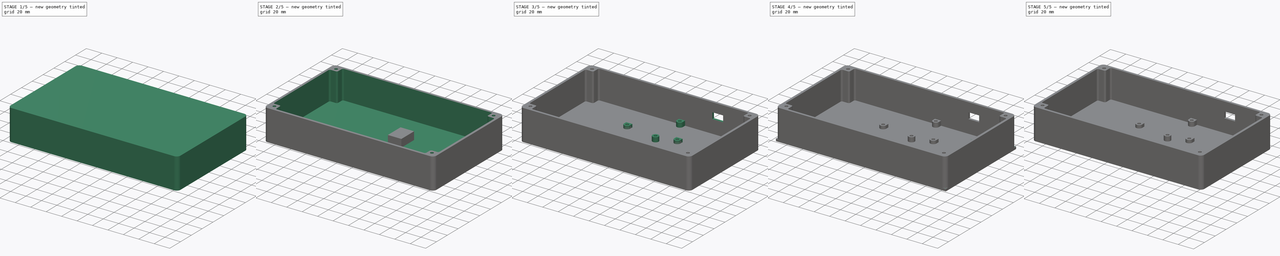
[diagram: build sequence overview — one tinted view per stage of 5, left to right]
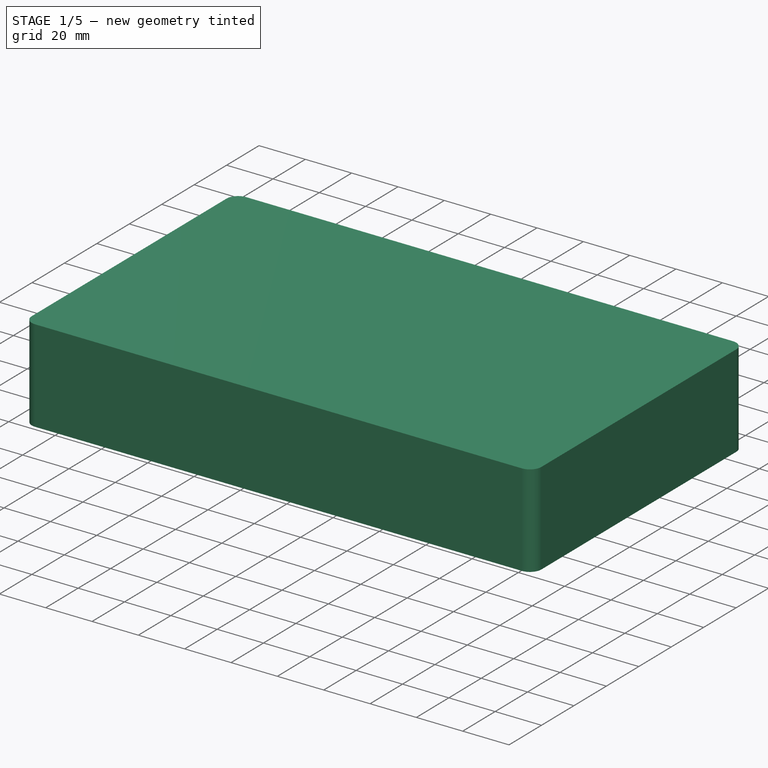
[diagram: stage 1 of 5 — iso view after this stage's code; geometry added in this stage tinted green]
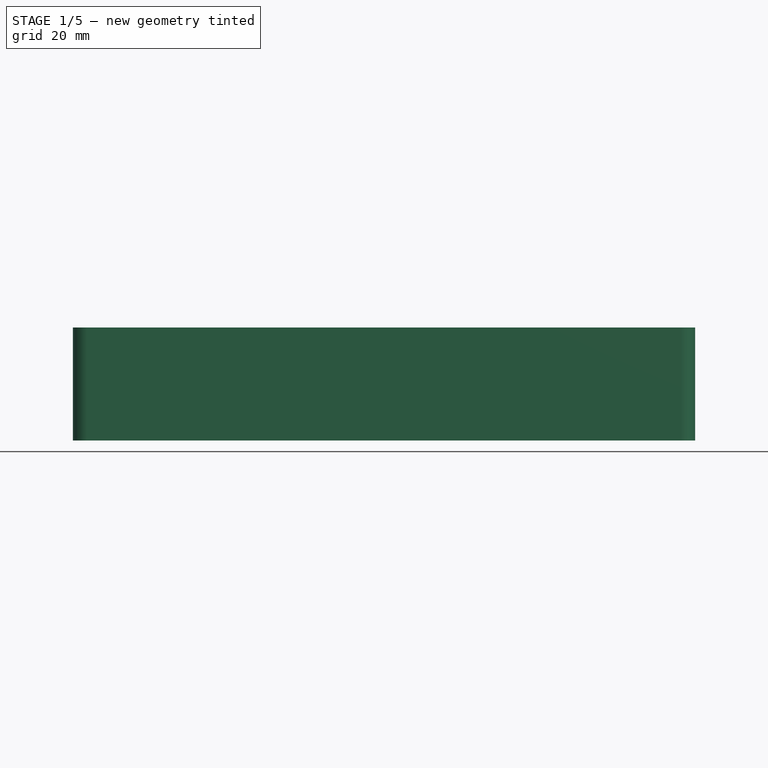
[diagram: stage 1 of 5 — front view after this stage's code; geometry added in this stage tinted green]
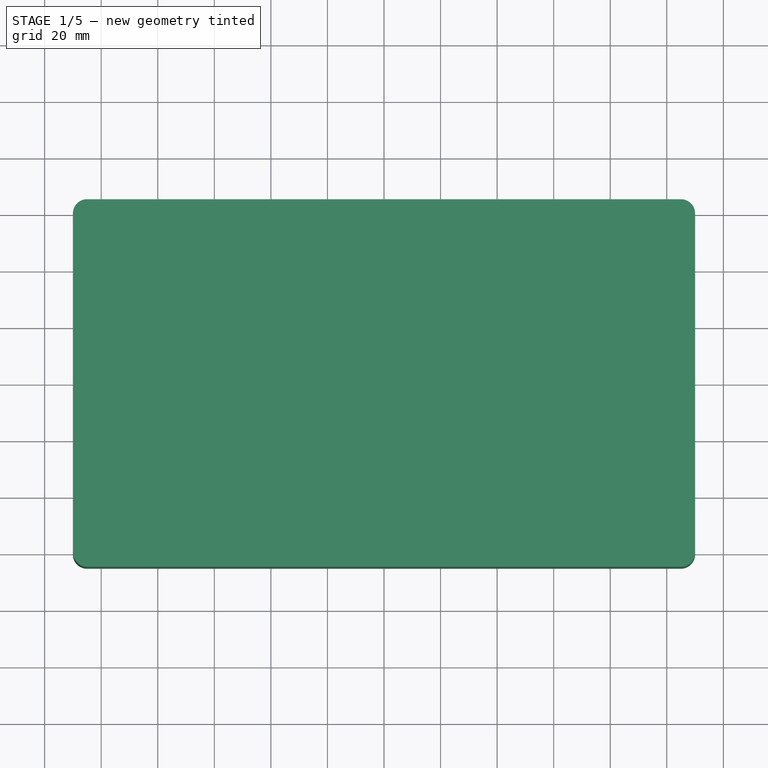
[diagram: stage 1 of 5 — top view after this stage's code; geometry added in this stage tinted green]
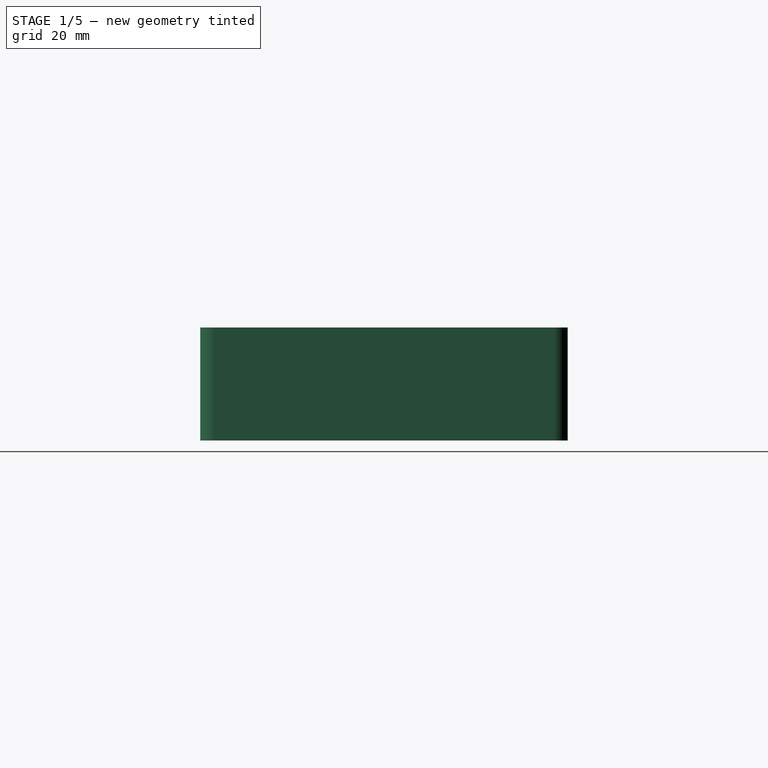
[diagram: stage 1 of 5 — right view after this stage's code; geometry added in this stage tinted green]
FCSTD DOCUMENT  (FreeCAD 1.0R38641 +468 (Git))
Label: model
License: All rights reserved
LicenseURL: https://en.wikipedia.org/wiki/All_rights_reserved
objects: Sketcher::SketchObject×19, PartDesign::Pocket×11, PartDesign::Pad×8, PartDesign::Fillet×4, PartDesign::Body×4, PartDesign::ShapeBinder×1
note: 112 computed .brp shape members not serialized (recipe doc carries the construction recipe); baked Part::Feature solids carry a one-line shape summary decoded from their .brp

FEATURE [Sketcher::SketchObject] Sketch006
  ArcFitTolerance = 1e-06
  AttachmentSupport = -> [XY_Plane001]
  FullyConstrained = true
  MakeInternals = false
  MapMode = 5
  sketch-geometry (5):
    g0: LineSegment StartX=-110 StartY=65 StartZ=0 EndX=-110 EndY=-65 EndZ=0
    g1: LineSegment StartX=-110 StartY=-65 StartZ=0 EndX=110 EndY=-65 EndZ=0
    g2: LineSegment StartX=110 StartY=-65 StartZ=0 EndX=110 EndY=65 EndZ=0
    g3: LineSegment StartX=110 StartY=65 StartZ=0 EndX=-110 EndY=65 EndZ=0
    g4: GeomPoint [constr] X=0 Y=0 Z=0
  constraints (12):
    c: Coincident(g0,g1)
    c: Coincident(g1,g2)
    c: Coincident(g2,g3)
    c: Coincident(g3,g0)
    c: Vertical(g0)
    c: Vertical(g2)
    c: Horizontal(g1)
    c: Horizontal(g3)
    c: Symmetric(g2,g0,g4)
    c: Coincident(g4,g-1)
    c: DistanceX(g3,g3) = 220
    c: DistanceY(g0,g0) = 130
FEATURE [PartDesign::Pad] Pad001
  Direction = (0,0,1)
  Length = 40
  Length2 = 10
  Profile = -> Sketch006
  ReferenceAxis = -> Sketch006 [N_Axis]
  Refine = true
  Suppressed = false
  Type = 0
FEATURE [PartDesign::Fillet] Fillet001
  Base = -> Pad001 [Edge2,Edge5,Edge8,Edge1]
  BaseFeature = -> Pad001
  Radius = 5
  Refine = true
  SupportTransform = false
  Suppressed = false
  UseAllEdges = false
FEATURE [PartDesign::Body] Body002
  AllowCompound = false
  Group = -> [Sketch012,Pad004,Sketch013,Pad005,Sketch014,Pocket008]
  Origin = -> Origin002
  Tip = -> Pocket008
FEATURE [Sketcher::SketchObject] Sketch015
  ArcFitTolerance = 1e-06
  AttachmentSupport = -> [XY_Plane003]
  FullyConstrained = true
  MakeInternals = false
  MapMode = 5
  sketch-geometry (5):
    g0: LineSegment StartX=-35 StartY=-25 StartZ=0 EndX=35 EndY=-25 EndZ=0
    g1: LineSegment StartX=35 StartY=-25 StartZ=0 EndX=35 EndY=25 EndZ=0
    g2: LineSegment StartX=35 StartY=25 StartZ=0 EndX=-35 EndY=25 EndZ=0
    g3: LineSegment StartX=-35 StartY=25 StartZ=0 EndX=-35 EndY=-25 EndZ=0
    g4: GeomPoint [constr] X=0 Y=0 Z=0
  constraints (12):
    c: Coincident(g0,g1)
    c: Coincident(g1,g2)
    c: Coincident(g2,g3)
    c: Coincident(g3,g0)
    c: Horizontal(g0)
    c: Horizontal(g2)
    c: Vertical(g1)
    c: Vertical(g3)
    c: Symmetric(g2,g0,g4)
    c: Distance(g1,g3) = 70
    c: Distance(g0,g2) = 50
    c: Coincident(g4,g-1)
FEATURE [PartDesign::Pad] Pad006
  Direction = (0,0,1)
  Length = 1.2
  Length2 = 10
  Profile = -> Sketch015
  ReferenceAxis = -> Sketch015 [N_Axis]
  Refine = true
  Suppressed = false
  Type = 0
FEATURE [Sketcher::SketchObject] Sketch016
  ArcFitTolerance = 1e-06
  AttachmentSupport = -> [Pad006]
  FullyConstrained = true
  MakeInternals = false
  MapMode = 5
  Placement = pos=(0,0,1.2) rot=(0,0,1;0rad)
  sketch-geometry (9):
    g0: Circle CenterX=-32.5 CenterY=22.5 CenterZ=0 NormalX=0 NormalY=0 NormalZ=1 AngleXU=0 Radius=1.5
    g1: Circle CenterX=32.5 CenterY=22.5 CenterZ=0 NormalX=0 NormalY=0 NormalZ=1 AngleXU=0 Radius=1.5
    g2: Circle CenterX=32.5 CenterY=-22.5 CenterZ=0 NormalX=0 NormalY=0 NormalZ=1 AngleXU=0 Radius=1.5
    g3: Circle CenterX=-32.5 CenterY=-22.5 CenterZ=0 NormalX=0 NormalY=0 NormalZ=1 AngleXU=0 Radius=1.5
    g4: LineSegment [constr] StartX=-32.5 StartY=22.5 StartZ=0 EndX=0 EndY=0 EndZ=0
    g5: LineSegment [constr] StartX=0 StartY=0 StartZ=0 EndX=32.5 EndY=-22.5 EndZ=0
    g6: LineSegment [constr] StartX=-32.5 StartY=-22.5 StartZ=0 EndX=0 EndY=0 EndZ=0
    g7: LineSegment [constr] StartX=0 StartY=0 StartZ=0 EndX=32.5 EndY=22.5 EndZ=0
    g8: LineSegment [constr] StartX=32.5 StartY=22.5 StartZ=0 EndX=32.5 EndY=-22.5 EndZ=0
  constraints (22):
    c: Equal(g0,g1)
    c: Equal(g3,g2)
    c: Equal(g2,g1)
    c: Diameter(g0) = 3
    c: Coincident(g4,g0)
    c: Coincident(g4,g-1)
    c: Coincident(g5,g4)
    c: Coincident(g5,g2)
    c: Coincident(g6,g3)
    c: Coincident(g6,g4)
    c: Coincident(g7,g4)
    c: Coincident(g7,g1)
    c: Parallel(g7,g6)
    c: Parallel(g4,g5)
    c: Equal(g5,g4)
    c: Equal(g6,g7)
    c: Equal(g7,g5)
    c: Coincident(g8,g1)
    c: Coincident(g8,g2)
    c: Vertical(g8)
    c: DistanceX(g0,g1) = 65
    c: DistanceY(g8,g8) = 45
FEATURE [PartDesign::Pocket] Pocket009
  BaseFeature = -> Pad006
  Direction = (0,0,-1)
  Length = 1.2
  Length2 = 5
  Profile = -> Sketch016
  ReferenceAxis = -> Sketch016 [N_Axis]
  Refine = true
  Suppressed = false
  Type = 0
FEATURE [Sketcher::SketchObject] Sketch017
  ArcFitTolerance = 1e-06
  AttachmentSupport = -> [Pocket009]
  ExternalGeometry = -> [Pocket009]
  FullyConstrained = true
  MakeInternals = false
  MapMode = 5
  Placement = pos=(0,0,1.2) rot=(0,0,1;0rad)
  sketch-geometry (4):
    g0: LineSegment StartX=5 StartY=23.5 StartZ=0 EndX=5 EndY=0 EndZ=0
    g1: LineSegment StartX=5 StartY=0 StartZ=0 EndX=22.5 EndY=0 EndZ=0
    g2: LineSegment StartX=22.5 StartY=0 StartZ=0 EndX=22.5 EndY=23.5 EndZ=0
    g3: LineSegment StartX=22.5 StartY=23.5 StartZ=0 EndX=5 EndY=23.5 EndZ=0
  constraints (12):
    c: Coincident(g0,g1)
    c: Coincident(g1,g2)
    c: Coincident(g2,g3)
    c: Coincident(g3,g0)
    c: Vertical(g0)
    c: Vertical(g2)
    c: Horizontal(g1)
    c: Horizontal(g3)
    c: Distance(g0,g2) = 17.5
    c: Distance(g1,g3) = 23.5
    c: DistanceY(g2,g-3) = 1.5
    c: DistanceX(g2,g-3) = 12.5
FEATURE [PartDesign::Pad] Pad007
  BaseFeature = -> Pocket009
  Direction = (0,0,1)
  Length = 12
  Length2 = 10
  Profile = -> Sketch017
  ReferenceAxis = -> Sketch017 [N_Axis]
  Refine = true
  Suppressed = false
  Type = 0
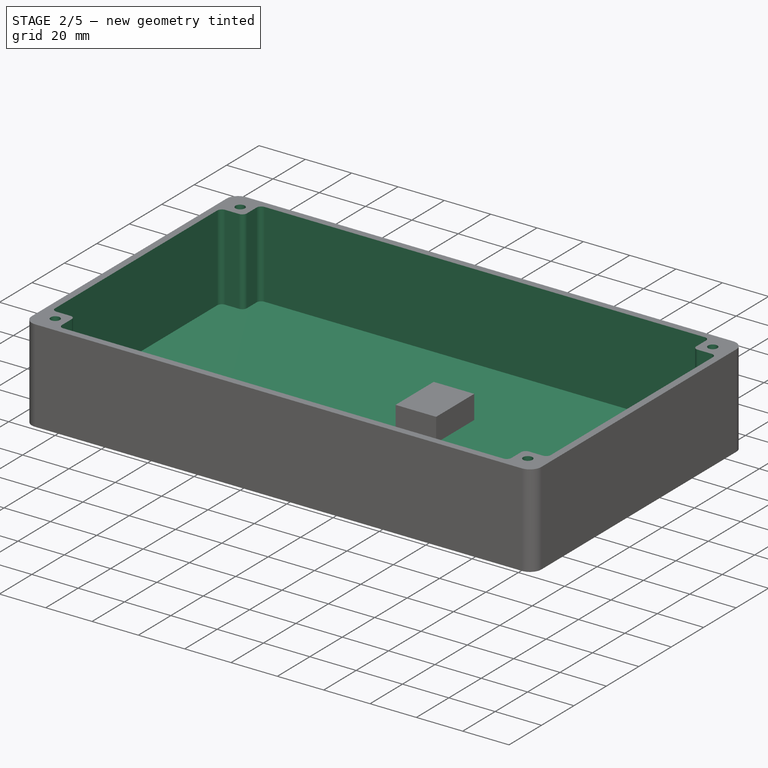
[diagram: stage 2 of 5 — iso view after this stage's code; geometry added in this stage tinted green]
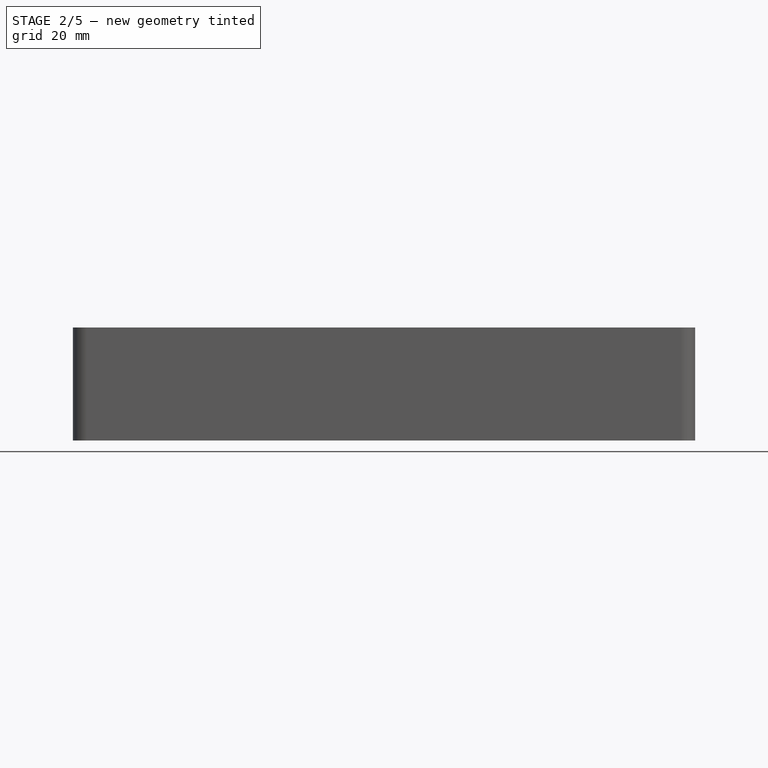
[diagram: stage 2 of 5 — front view after this stage's code; geometry added in this stage tinted green]
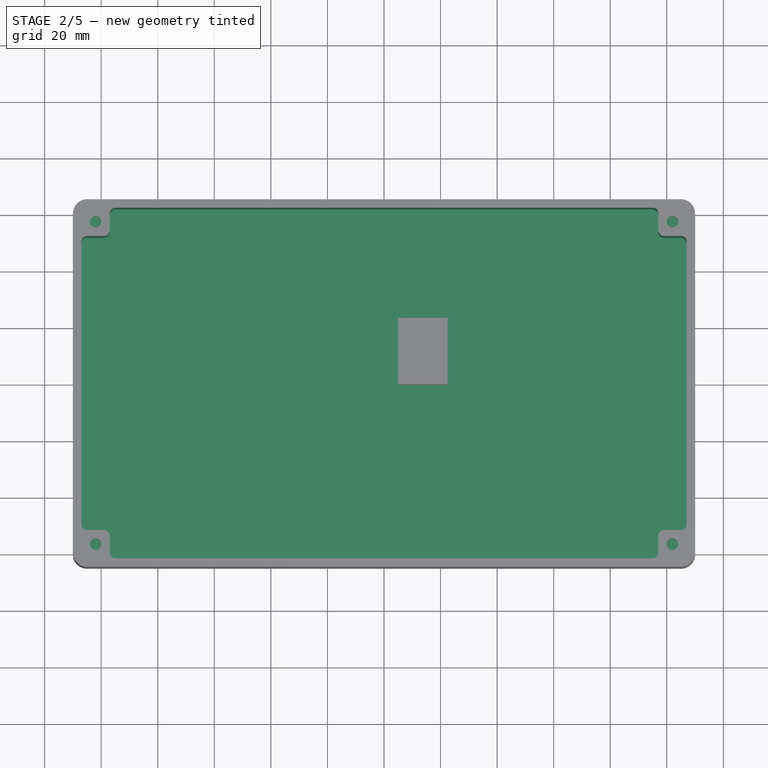
[diagram: stage 2 of 5 — top view after this stage's code; geometry added in this stage tinted green]
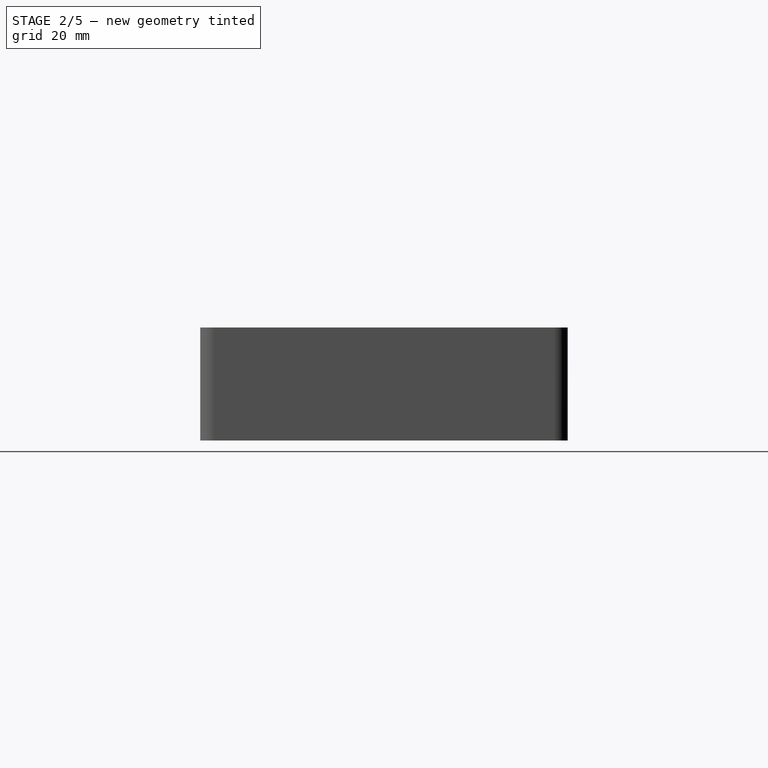
[diagram: stage 2 of 5 — right view after this stage's code; geometry added in this stage tinted green]
FEATURE [Sketcher::SketchObject] Sketch007
  ArcFitTolerance = 1e-06
  AttachmentSupport = -> [Fillet001]
  FullyConstrained = true
  MakeInternals = false
  MapMode = 5
  Placement = pos=(0,0,40) rot=(0,0,1;0rad)
  sketch-geometry (21):
    g0: LineSegment StartX=-97 StartY=-62 StartZ=0 EndX=97 EndY=-62 EndZ=0
    g1: LineSegment StartX=107 StartY=-52 StartZ=0 EndX=107 EndY=52 EndZ=0
    g2: LineSegment StartX=97 StartY=62 StartZ=0 EndX=-97 EndY=62 EndZ=0
    g3: LineSegment StartX=-107 StartY=52 StartZ=0 EndX=-107 EndY=-52 EndZ=0
    g4: GeomPoint [constr] X=0 Y=0 Z=0
    g5: GeomPoint [constr] X=-107 Y=62 Z=0
    g6: GeomPoint [constr] X=107 Y=62 Z=0
    g7: GeomPoint [constr] X=107 Y=-62 Z=0
    g8: GeomPoint [constr] X=-107 Y=-62 Z=0
    g9: LineSegment [constr] StartX=-97 StartY=62 StartZ=0 EndX=97 EndY=-62 EndZ=0
    g10: LineSegment [constr] StartX=97 StartY=62 StartZ=0 EndX=-97 EndY=-62 EndZ=0
    g11: LineSegment [constr] StartX=-107 StartY=-52 StartZ=0 EndX=107 EndY=52 EndZ=0
    g12: LineSegment [constr] StartX=107 StartY=-52 StartZ=0 EndX=-107 EndY=52 EndZ=0
    g13: LineSegment StartX=-97 StartY=62 StartZ=0 EndX=-97 EndY=52 EndZ=0
    g14: LineSegment StartX=-97 StartY=52 StartZ=0 EndX=-107 EndY=52 EndZ=0
    g15: LineSegment StartX=97 StartY=62 StartZ=0 EndX=97 EndY=52 EndZ=0
    g16: LineSegment StartX=97 StartY=52 StartZ=0 EndX=107 EndY=52 EndZ=0
    g17: LineSegment StartX=97 StartY=-62 StartZ=0 EndX=97 EndY=-52 EndZ=0
    g18: LineSegment StartX=97 StartY=-52 StartZ=0 EndX=107 EndY=-52 EndZ=0
    g19: LineSegment StartX=-107 StartY=-52 StartZ=0 EndX=-97 EndY=-52 EndZ=0
    g20: LineSegment StartX=-97 StartY=-62 StartZ=0 EndX=-97 EndY=-52 EndZ=0
  constraints (52):
    c: Horizontal(g0)
    c: Horizontal(g2)
    c: Vertical(g1)
    c: Vertical(g3)
    c: Symmetric(g6,g8,g4)
    c: Distance(g7,g8) = 214
    c: Distance(g8,g5) = 124
    c: Coincident(g4,g-1)
    c: PointOnObject(g5,g2)
    c: PointOnObject(g5,g3)
    c: PointOnObject(g6,g1)
    c: PointOnObject(g6,g2)
    c: PointOnObject(g7,g0)
    c: PointOnObject(g7,g1)
    c: PointOnObject(g8,g0)
    c: PointOnObject(g8,g3)
    c: Equal(g2,g0)
    c: Equal(g1,g3)
    c: Coincident(g9,g2)
    c: Coincident(g9,g0)
    c: Coincident(g10,g2)
    c: Coincident(g10,g0)
    c: Equal(g10,g9)
    c: PointOnObject(g4,g10)
    c: Coincident(g11,g3)
    c: Coincident(g11,g1)
    c: Coincident(g12,g1)
    c: Coincident(g12,g3)
    c: Equal(g12,g11)
    c: PointOnObject(g4,g12)
    c: DistanceX(g0,g0) = 194
    c: DistanceY(g3,g3) = 104
    c: Coincident(g13,g2)
    c: Vertical(g13)
    c: Coincident(g14,g13)
    c: Coincident(g14,g3)
    c: Horizontal(g14)
    c: Coincident(g15,g2)
    c: Vertical(g15)
    c: Coincident(g16,g15)
    c: Coincident(g16,g1)
    c: Horizontal(g16)
    c: Coincident(g17,g0)
    c: Vertical(g17)
    c: Coincident(g18,g17)
    c: Coincident(g18,g1)
    c: Horizontal(g18)
    c: Coincident(g19,g3)
    c: Horizontal(g19)
    c: Coincident(g20,g0)
    c: Coincident(g20,g19)
    c: Vertical(g20)
FEATURE [PartDesign::Pocket] Pocket005
  BaseFeature = -> Fillet001
  Direction = (0,0,-1)
  Length = 37
  Length2 = 5
  Profile = -> Sketch007
  ReferenceAxis = -> Sketch007 [N_Axis]
  Refine = true
  Suppressed = false
  Type = 0
FEATURE [Sketcher::SketchObject] Sketch008
  ArcFitTolerance = 1e-06
  AttachmentSupport = -> [Pocket005]
  ExternalGeometry = -> [Pocket005]
  FullyConstrained = true
  MakeInternals = false
  MapMode = 5
  Placement = pos=(0,0,40) rot=(0,0,1;0rad)
  sketch-geometry (8):
    g0: Circle CenterX=-102 CenterY=57 CenterZ=0 NormalX=0 NormalY=0 NormalZ=1 AngleXU=0 Radius=2
    g1: Circle CenterX=102 CenterY=57 CenterZ=0 NormalX=0 NormalY=0 NormalZ=1 AngleXU=0 Radius=2
    g2: Circle CenterX=102 CenterY=-57 CenterZ=0 NormalX=0 NormalY=0 NormalZ=1 AngleXU=0 Radius=2
    g3: Circle CenterX=-102 CenterY=-57 CenterZ=0 NormalX=0 NormalY=0 NormalZ=1 AngleXU=0 Radius=2
    g4: LineSegment [constr] StartX=-102 StartY=57 StartZ=0 EndX=0 EndY=0 EndZ=0
    g5: LineSegment [constr] StartX=0 StartY=0 StartZ=0 EndX=102 EndY=-57 EndZ=0
    g6: LineSegment [constr] StartX=102 StartY=57 StartZ=0 EndX=0 EndY=0 EndZ=0
    g7: LineSegment [constr] StartX=0 StartY=0 StartZ=0 EndX=-102 EndY=-57 EndZ=0
  constraints (20):
    c: Equal(g3,g0)
    c: Equal(g0,g1)
    c: Equal(g1,g2)
    c: DistanceX(g0,g-3) = 5
    c: DistanceY(g-3,g0) = 5
    c: Diameter(g0) = 4
    c: Coincident(g4,g0)
    c: Coincident(g4,g-1)
    c: Coincident(g5,g4)
    c: Coincident(g5,g2)
    c: Coincident(g6,g1)
    c: Coincident(g6,g4)
    c: Coincident(g7,g4)
    c: Coincident(g7,g3)
    c: Parallel(g7,g6)
    c: Parallel(g5,g4)
    c: Equal(g4,g5)
    c: Equal(g6,g5)
    c: Equal(g7,g6)
    c: DistanceY(g-6,g1) = 5
FEATURE [PartDesign::Pocket] Pocket006
  BaseFeature = -> Pocket005
  Direction = (0,0,-1)
  Length = 6
  Length2 = 5
  Profile = -> Sketch008
  ReferenceAxis = -> Sketch008 [N_Axis]
  Refine = true
  Suppressed = false
  Type = 0
FEATURE [PartDesign::Fillet] Fillet002
  Base = -> Pocket006 [Edge54,Edge47,Edge58,Edge66,Edge48,Edge56,Edge68,Edge60]
  BaseFeature = -> Pocket006
  Radius = 2
  Refine = true
  SupportTransform = false
  Suppressed = false
  UseAllEdges = false
FEATURE [PartDesign::Fillet] Fillet003
  Base = -> Fillet002 [Edge62,Edge42,Edge40,Edge60]
  BaseFeature = -> Fillet002
  Radius = 2
  Refine = true
  SupportTransform = false
  Suppressed = false
  UseAllEdges = false
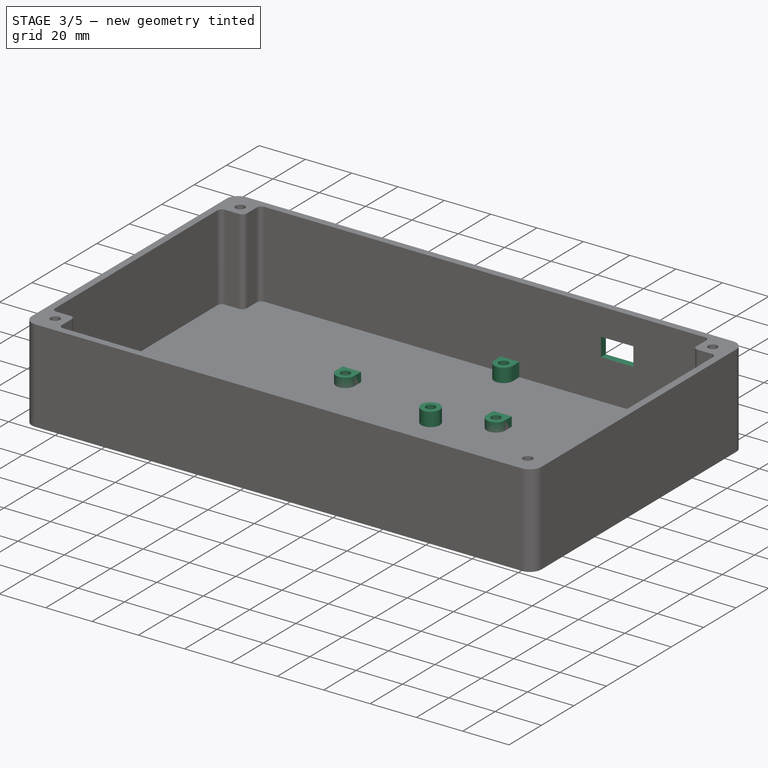
[diagram: stage 3 of 5 — iso view after this stage's code; geometry added in this stage tinted green]
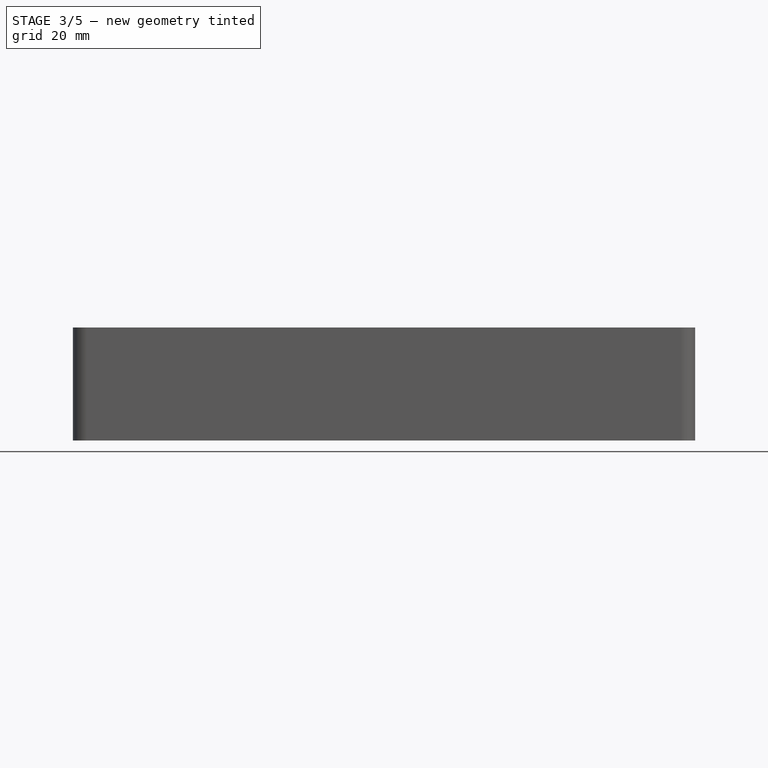
[diagram: stage 3 of 5 — front view after this stage's code; geometry added in this stage tinted green]
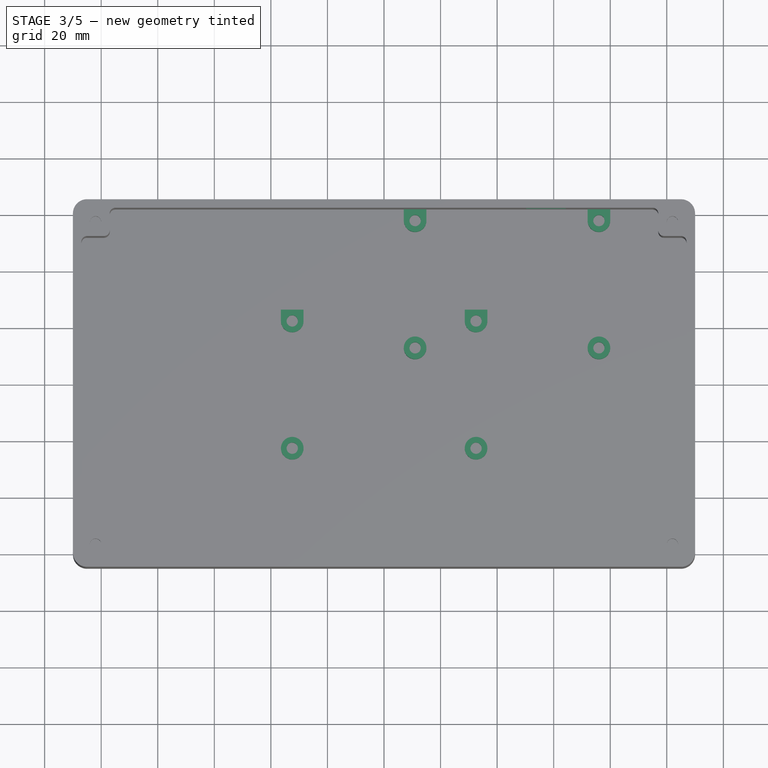
[diagram: stage 3 of 5 — top view after this stage's code; geometry added in this stage tinted green]
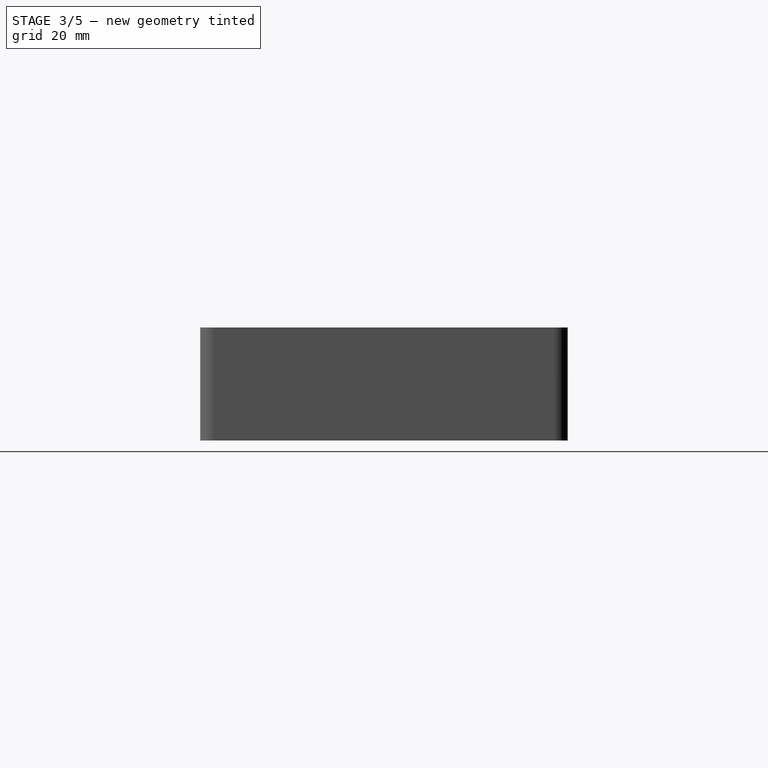
[diagram: stage 3 of 5 — right view after this stage's code; geometry added in this stage tinted green]
FEATURE [PartDesign::Body] Body  label="Faceplate"
  AllowCompound = false
  Group = -> [Sketch,Pad,Sketch001,Pocket,Sketch002,Pocket001,Sketch003,Pocket002,Sketch004,Pocket003,Sketch005,Pocket004,Fillet,Sketch009,Pocket007,Sketch010,Pad002]
  Origin = -> Origin
  Placement = pos=(0,0,40) rot=(0,0,1;0rad)
  Tip = -> Pad002
FEATURE [Sketcher::SketchObject] Sketch011
  ArcFitTolerance = 1e-06
  AttachmentSupport = -> [Fillet003]
  ExternalGeometry = -> [Fillet003]
  FullyConstrained = true
  MakeInternals = false
  MapMode = 5
  Placement = pos=(0,0,3) rot=(0,0,1;0rad)
  sketch-geometry (36):
    g0: LineSegment [constr] StartX=-80 StartY=62 StartZ=0 EndX=-80 EndY=58 EndZ=0
    g1: LineSegment [constr] StartX=-72 StartY=58 StartZ=0 EndX=-72 EndY=62 EndZ=0
    g2: LineSegment [constr] StartX=-72 StartY=62 StartZ=0 EndX=-80 EndY=62 EndZ=0
    g3: LineSegment [constr] StartX=-80 StartY=58 StartZ=0 EndX=-72 EndY=58 EndZ=0
    g4: ArcOfCircle [constr] CenterX=-76 CenterY=58 CenterZ=0 NormalX=0 NormalY=0 NormalZ=1 AngleXU=0 Radius=4 StartAngle=3.14159 EndAngle=6.28319
    g5: Circle [constr] CenterX=-76 CenterY=58 CenterZ=0 NormalX=0 NormalY=0 NormalZ=1 AngleXU=0 Radius=2
    g6: LineSegment [constr] StartX=-15 StartY=62 StartZ=0 EndX=-15 EndY=58 EndZ=0
    g7: LineSegment [constr] StartX=-7 StartY=58 StartZ=0 EndX=-7 EndY=62 EndZ=0
    g8: LineSegment [constr] StartX=-7 StartY=62 StartZ=0 EndX=-15 EndY=62 EndZ=0
    g9: LineSegment [constr] StartX=-15 StartY=58 StartZ=0 EndX=-7 EndY=58 EndZ=0
    g10: ArcOfCircle [constr] CenterX=-11 CenterY=58 CenterZ=0 NormalX=0 NormalY=0 NormalZ=1 AngleXU=0 Radius=4 StartAngle=3.14159 EndAngle=6.28319
    g11: Circle [constr] CenterX=-11 CenterY=58 CenterZ=0 NormalX=0 NormalY=0 NormalZ=1 AngleXU=0 Radius=2
    g12: Circle [constr] CenterX=-76 CenterY=13 CenterZ=0 NormalX=0 NormalY=0 NormalZ=1 AngleXU=0 Radius=4
    g13: Circle [constr] CenterX=-76 CenterY=13 CenterZ=0 NormalX=0 NormalY=0 NormalZ=1 AngleXU=0 Radius=2
    g14: Circle [constr] CenterX=-11 CenterY=13 CenterZ=0 NormalX=0 NormalY=0 NormalZ=1 AngleXU=0 Radius=4
    g15: Circle [constr] CenterX=-11 CenterY=13 CenterZ=0 NormalX=0 NormalY=0 NormalZ=1 AngleXU=0 Radius=2
    g16: LineSegment [constr] StartX=-11 StartY=58 StartZ=0 EndX=-11 EndY=13 EndZ=0
    g17: LineSegment [constr] StartX=-76 StartY=58 StartZ=0 EndX=-76 EndY=13 EndZ=0
    g18: LineSegment StartX=7 StartY=62 StartZ=0 EndX=7 EndY=58 EndZ=0
    g19: LineSegment StartX=15 StartY=58 StartZ=0 EndX=15 EndY=62 EndZ=0
    g20: LineSegment StartX=15 StartY=62 StartZ=0 EndX=7 EndY=62 EndZ=0
    g21: LineSegment [constr] StartX=7 StartY=58 StartZ=0 EndX=15 EndY=58 EndZ=0
    g22: ArcOfCircle CenterX=11 CenterY=58 CenterZ=0 NormalX=0 NormalY=0 NormalZ=1 AngleXU=0 Radius=4 StartAngle=3.14159 EndAngle=6.28319
    g23: Circle CenterX=11 CenterY=58 CenterZ=0 NormalX=0 NormalY=0 NormalZ=1 AngleXU=0 Radius=2
    g24: LineSegment StartX=72 StartY=62 StartZ=0 EndX=72 EndY=58 EndZ=0
    g25: LineSegment StartX=80 StartY=58 StartZ=0 EndX=80 EndY=62 EndZ=0
    g26: LineSegment StartX=80 StartY=62 StartZ=0 EndX=72 EndY=62 EndZ=0
    g27: LineSegment [constr] StartX=72 StartY=58 StartZ=0 EndX=80 EndY=58 EndZ=0
    g28: ArcOfCircle CenterX=76 CenterY=58 CenterZ=0 NormalX=0 NormalY=0 NormalZ=1 AngleXU=0 Radius=4 StartAngle=3.14159 EndAngle=6.28319
    g29: Circle CenterX=76 CenterY=58 CenterZ=0 NormalX=0 NormalY=0 NormalZ=1 AngleXU=0 Radius=2
    g30: Circle CenterX=11 CenterY=13 CenterZ=0 NormalX=0 NormalY=0 NormalZ=1 AngleXU=0 Radius=4
    g31: Circle CenterX=11 CenterY=13 CenterZ=0 NormalX=0 NormalY=0 NormalZ=1 AngleXU=0 Radius=2
    g32: Circle CenterX=76 CenterY=13 CenterZ=0 NormalX=0 NormalY=0 NormalZ=1 AngleXU=0 Radius=4
    g33: Circle CenterX=76 CenterY=13 CenterZ=0 NormalX=0 NormalY=0 NormalZ=1 AngleXU=0 Radius=2
    g34: LineSegment [constr] StartX=76 StartY=58 StartZ=0 EndX=76 EndY=13 EndZ=0
    g35: LineSegment [constr] StartX=11 StartY=58 StartZ=0 EndX=11 EndY=13 EndZ=0
  constraints (96):
    c: Coincident(g1,g2)
    c: Coincident(g2,g0)
    c: Vertical(g0)
    c: Vertical(g1)
    c: Horizontal(g2)
    c: DistanceX(g2,g2) = 8
    c: Coincident(g3,g0)
    c: Coincident(g3,g1)
    c: Horizontal(g3)
    c: PointOnObject(g4,g3)
    c: Coincident(g4,g0)
    c: Coincident(g4,g1)
    c: Diameter(g5) = 4
    c: Coincident(g5,g4)
    c: DistanceY(g1,g1) = 4
    c: Coincident(g7,g8)
    c: Coincident(g8,g6)
    c: Vertical(g6)
    c: Vertical(g7)
    c: Horizontal(g8)
    c: DistanceX(g8,g8) = 8
    c: Coincident(g9,g6)
    c: Coincident(g9,g7)
    c: Horizontal(g9)
    c: PointOnObject(g10,g9)
    c: Coincident(g10,g6)
    c: Coincident(g10,g7)
    c: Diameter(g11) = 4
    c: Coincident(g11,g10)
    c: DistanceY(g7,g7) = 4
    c: DistanceX(g1,g6) = 57
    c: Diameter(g12) = 8
    c: Diameter(g13) = 4
    c: Coincident(g13,g12)
    c: Diameter(g14) = 8
    c: Diameter(g15) = 4
    c: Coincident(g15,g14)
    c: Coincident(g16,g10)
    c: Coincident(g16,g14)
    c: Vertical(g16)
    c: Coincident(g17,g4)
    c: Coincident(g17,g12)
    c: Equal(g16,g17)
    c: Vertical(g17)
    c: Coincident(g19,g20)
    c: Coincident(g20,g18)
    c: Vertical(g18)
    c: Vertical(g19)
    c: Horizontal(g20)
    c: DistanceX(g20,g20) = 8
    c: Coincident(g21,g18)
    c: Coincident(g21,g19)
    c: Horizontal(g21)
    c: PointOnObject(g22,g21)
    c: Coincident(g22,g18)
    c: Coincident(g22,g19)
    c: Diameter(g23) = 4
    c: Coincident(g23,g22)
    c: DistanceY(g19,g19) = 4
    c: Coincident(g25,g26)
    c: Coincident(g26,g24)
    c: Vertical(g24)
    c: Vertical(g25)
    c: Horizontal(g26)
    c: DistanceX(g26,g26) = 8
    c: Coincident(g27,g24)
    c: Coincident(g27,g25)
    c: Horizontal(g27)
    c: PointOnObject(g28,g27)
    c: Coincident(g28,g24)
    c: Coincident(g28,g25)
    c: Diameter(g29) = 4
    c: Coincident(g29,g28)
    c: DistanceY(g25,g25) = 4
    c: DistanceX(g19,g24) = 57
    c: Diameter(g30) = 8
    c: Diameter(g31) = 4
    c: Coincident(g31,g30)
    c: Diameter(g32) = 8
    c: Diameter(g33) = 4
    c: Coincident(g33,g32)
    c: Coincident(g34,g28)
    c: Coincident(g34,g32)
    c: Vertical(g34)
    c: Coincident(g35,g22)
    c: Coincident(g35,g30)
    c: Equal(g34,g35)
    c: Vertical(g35)
    c: DistanceY(g34,g34) = 45
    c: DistanceX(g25,g-3) = 15
    c: PointOnObject(g25,g-3)
    c: PointOnObject(g19,g-3)
    c: PointOnObject(g1,g-3)
    c: PointOnObject(g7,g-3)
    c: DistanceX(g-3,g0) = 15
    c: Equal(g34,g16)
FEATURE [PartDesign::Pad] Pad003
  BaseFeature = -> Fillet003
  Direction = (0,0,1)
  Length = 6
  Length2 = 10
  Profile = -> Sketch011
  ReferenceAxis = -> Sketch011 [N_Axis]
  Refine = true
  Suppressed = false
  Type = 0
FEATURE [Sketcher::SketchObject] Sketch012
  ArcFitTolerance = 1e-06
  AttachmentSupport = -> [XY_Plane002]
  FullyConstrained = true
  MakeInternals = false
  MapMode = 5
  sketch-geometry (5):
    g0: LineSegment StartX=-37.5 StartY=-27.5 StartZ=0 EndX=37.5 EndY=-27.5 EndZ=0
    g1: LineSegment StartX=37.5 StartY=-27.5 StartZ=0 EndX=37.5 EndY=27.5 EndZ=0
    g2: LineSegment StartX=37.5 StartY=27.5 StartZ=0 EndX=-37.5 EndY=27.5 EndZ=0
    g3: LineSegment StartX=-37.5 StartY=27.5 StartZ=0 EndX=-37.5 EndY=-27.5 EndZ=0
    g4: GeomPoint [constr] X=0 Y=0 Z=0
  constraints (12):
    c: Coincident(g0,g1)
    c: Coincident(g1,g2)
    c: Coincident(g2,g3)
    c: Coincident(g3,g0)
    c: Horizontal(g0)
    c: Horizontal(g2)
    c: Vertical(g1)
    c: Vertical(g3)
    c: Symmetric(g2,g0,g4)
    c: Distance(g1,g3) = 75
    c: Distance(g0,g2) = 55
    c: Coincident(g4,g-1)
FEATURE [PartDesign::Pad] Pad004
  Direction = (0,0,1)
  Length = 1
  Length2 = 10
  Profile = -> Sketch012
  ReferenceAxis = -> Sketch012 [N_Axis]
  Refine = true
  Suppressed = false
  Type = 0
FEATURE [Sketcher::SketchObject] Sketch013
  ArcFitTolerance = 1e-06
  AttachmentSupport = -> [Pad004]
  ExternalGeometry = -> [Pad004]
  FullyConstrained = false
  MakeInternals = false
  MapMode = 5
  Placement = pos=(0,0,1) rot=(0,0,1;0rad)
  sketch-geometry (19):
    g0: LineSegment StartX=-36.4491 StartY=26.5274 StartZ=0 EndX=-36.4491 EndY=22.5274 EndZ=0
    g1: LineSegment StartX=-28.4491 StartY=22.5274 StartZ=0 EndX=-28.4491 EndY=26.5274 EndZ=0
    g2: LineSegment StartX=-28.4491 StartY=26.5274 StartZ=0 EndX=-36.4491 EndY=26.5274 EndZ=0
    g3: LineSegment [constr] StartX=-36.4491 StartY=22.5274 StartZ=0 EndX=-28.4491 EndY=22.5274 EndZ=0
    g4: ArcOfCircle CenterX=-32.4491 CenterY=22.5274 CenterZ=0 NormalX=0 NormalY=0 NormalZ=1 AngleXU=0 Radius=4 StartAngle=3.14159 EndAngle=6.28319
    g5: Circle CenterX=-32.4491 CenterY=22.5274 CenterZ=0 NormalX=0 NormalY=0 NormalZ=1 AngleXU=0 Radius=2
    g6: LineSegment StartX=28.5509 StartY=26.5274 StartZ=0 EndX=28.5509 EndY=22.5274 EndZ=0
    g7: LineSegment StartX=36.5509 StartY=22.5274 StartZ=0 EndX=36.5509 EndY=26.5274 EndZ=0
    g8: LineSegment StartX=36.5509 StartY=26.5274 StartZ=0 EndX=28.5509 EndY=26.5274 EndZ=0
    g9: LineSegment [constr] StartX=28.5509 StartY=22.5274 StartZ=0 EndX=36.5509 EndY=22.5274 EndZ=0
    g10: ArcOfCircle CenterX=32.5509 CenterY=22.5274 CenterZ=0 NormalX=0 NormalY=0 NormalZ=1 AngleXU=0 Radius=4 StartAngle=3.14159 EndAngle=6.28319
    g11: Circle CenterX=32.5509 CenterY=22.5274 CenterZ=0 NormalX=0 NormalY=0 NormalZ=1 AngleXU=0 Radius=2
    g12: Circle CenterX=-32.4491 CenterY=-22.4726 CenterZ=0 NormalX=0 NormalY=0 NormalZ=1 AngleXU=0 Radius=4
    g13: Circle CenterX=-32.4491 CenterY=-22.4726 CenterZ=0 NormalX=0 NormalY=0 NormalZ=1 AngleXU=0 Radius=2
    g14: Circle CenterX=32.5509 CenterY=-22.4726 CenterZ=0 NormalX=0 NormalY=0 NormalZ=1 AngleXU=0 Radius=4
    g15: Circle CenterX=32.5509 CenterY=-22.4726 CenterZ=0 NormalX=0 NormalY=0 NormalZ=1 AngleXU=0 Radius=2
    g16: LineSegment [constr] StartX=32.5509 StartY=22.5274 StartZ=0 EndX=32.5509 EndY=-22.4726 EndZ=0
    g17: LineSegment [constr] StartX=-32.4491 StartY=22.5274 StartZ=0 EndX=-32.4491 EndY=-22.4726 EndZ=0
    g18: LineSegment [constr] StartX=-28.4491 StartY=26.5274 StartZ=0 EndX=28.5509 EndY=26.5274 EndZ=0
  constraints (48):
    c: Coincident(g1,g2)
    c: Coincident(g2,g0)
    c: Vertical(g0)
    c: Vertical(g1)
    c: Horizontal(g2)
    c: DistanceX(g2,g2) = 8
    c: Coincident(g3,g0)
    c: Coincident(g3,g1)
    c: Horizontal(g3)
    c: PointOnObject(g4,g3)
    c: Coincident(g4,g0)
    c: Coincident(g4,g1)
    c: Diameter(g5) = 4
    c: Coincident(g5,g4)
    c: DistanceY(g1,g1) = 4
    c: Coincident(g7,g8)
    c: Coincident(g8,g6)
    c: Vertical(g6)
    c: Vertical(g7)
    c: Horizontal(g8)
    c: DistanceX(g8,g8) = 8
    c: Coincident(g9,g6)
    c: Coincident(g9,g7)
    c: Horizontal(g9)
    c: PointOnObject(g10,g9)
    c: Coincident(g10,g6)
    c: Coincident(g10,g7)
    c: Diameter(g11) = 4
    c: Coincident(g11,g10)
    c: DistanceY(g7,g7) = 4
    c: DistanceX(g1,g6) = 57
    c: Diameter(g12) = 8
    c: Diameter(g13) = 4
    c: Coincident(g13,g12)
    c: Diameter(g14) = 8
    c: Diameter(g15) = 4
    c: Coincident(g15,g14)
    c: Coincident(g16,g10)
    c: Coincident(g16,g14)
    c: Vertical(g16)
    c: Coincident(g17,g4)
    c: Coincident(g17,g12)
    c: Equal(g16,g17)
    c: Vertical(g17)
    c: DistanceY(g16,g16) = 45
    c: Coincident(g18,g1)
    c: Coincident(g18,g6)
    c: Horizontal(g18)
FEATURE [PartDesign::Pad] Pad005
  BaseFeature = -> Pad004
  Direction = (0,0,1)
  Length = 6
  Length2 = 10
  Profile = -> Sketch013
  ReferenceAxis = -> Sketch013 [N_Axis]
  Refine = true
  Suppressed = false
  Type = 0
FEATURE [Sketcher::SketchObject] Sketch014
  ArcFitTolerance = 1e-06
  AttachmentSupport = -> [Pad005]
  FullyConstrained = false
  MakeInternals = false
  MapMode = 5
  Placement = pos=(0,0,1) rot=(0,0,1;0rad)
  sketch-geometry (14):
    g0: LineSegment StartX=-27.0521 StartY=23.3035 StartZ=0 EndX=27.0521 EndY=23.3035 EndZ=0
    g1: LineSegment StartX=27.0521 StartY=23.3035 StartZ=0 EndX=27.0521 EndY=17.7406 EndZ=0
    g2: LineSegment StartX=27.0521 StartY=17.7406 StartZ=0 EndX=32.615 EndY=17.7406 EndZ=0
    g3: LineSegment StartX=32.615 StartY=17.7406 StartZ=0 EndX=32.615 EndY=-17.7406 EndZ=0
    g4: LineSegment StartX=32.615 StartY=-17.7406 StartZ=0 EndX=27.0521 EndY=-17.7406 EndZ=0
    g5: LineSegment StartX=27.0521 StartY=-17.7406 StartZ=0 EndX=27.0521 EndY=-23.3035 EndZ=0
    g6: LineSegment StartX=27.0521 StartY=-23.3035 StartZ=0 EndX=-27.0521 EndY=-23.3035 EndZ=0
    g7: LineSegment StartX=-27.0521 StartY=-23.3035 StartZ=0 EndX=-27.0521 EndY=-17.7406 EndZ=0
    g8: LineSegment StartX=-27.0521 StartY=-17.7406 StartZ=0 EndX=-32.615 EndY=-17.7406 EndZ=0
    g9: LineSegment StartX=-32.615 StartY=-17.7406 StartZ=0 EndX=-32.615 EndY=17.7406 EndZ=0
    g10: LineSegment StartX=-32.615 StartY=17.7406 StartZ=0 EndX=-27.0521 EndY=17.7406 EndZ=0
    g11: LineSegment StartX=-27.0521 StartY=17.7406 StartZ=0 EndX=-27.0521 EndY=23.3035 EndZ=0
    g12: LineSegment [constr] StartX=-27.0521 StartY=17.7406 StartZ=0 EndX=0 EndY=0 EndZ=0
    g13: LineSegment [constr] StartX=0 StartY=0 StartZ=0 EndX=27.0521 EndY=-17.7406 EndZ=0
  constraints (37):
    c: Horizontal(g0)
    c: Coincident(g1,g0)
    c: Coincident(g2,g1)
    c: Coincident(g3,g2)
    c: Vertical(g3)
    c: Coincident(g4,g3)
    c: Coincident(g5,g4)
    c: Coincident(g6,g5)
    c: Horizontal(g6)
    c: Coincident(g7,g6)
    c: Vertical(g7)
    c: Coincident(g8,g7)
    c: Horizontal(g8)
    c: Coincident(g9,g8)
    c: Vertical(g9)
    c: Coincident(g10,g9)
    c: Horizontal(g10)
    c: Coincident(g11,g10)
    c: Coincident(g11,g0)
    c: Vertical(g11)
    c: Vertical(g1)
    c: Horizontal(g2)
    c: Horizontal(g4)
    c: Vertical(g5)
    c: Equal(g11,g1)
    c: Equal(g1,g5)
    c: Equal(g5,g7)
    c: Equal(g8,g10)
    c: Equal(g10,g2)
    c: Equal(g2,g4)
    c: Equal(g11,g10)
    c: Coincident(g12,g10)
    c: Coincident(g12,g-1)
    c: Coincident(g13,g12)
    c: Coincident(g13,g4)
    c: Equal(g12,g13)
    c: Parallel(g12,g13)
FEATURE [PartDesign::Pocket] Pocket008
  BaseFeature = -> Pad005
  Direction = (0,0,-1)
  Length = 5
  Length2 = 5
  Profile = -> Sketch014
  ReferenceAxis = -> Sketch014 [N_Axis]
  Refine = true
  Suppressed = false
  Type = 0
FEATURE [PartDesign::Body] Body003  label="pcb"
  AllowCompound = false
  Group = -> [Sketch015,Pad006,Sketch016,Pocket009,Sketch017,Pad007]
  Origin = -> Origin003
  Placement = pos=(43.5,35.5,9) rot=(0,0,1;0rad)
  Tip = -> Pad007
FEATURE [PartDesign::ShapeBinder] ShapeBinder
  Placement = pos=(43.5,35.5,9) rot=(0,0,1;0rad)
  Support = -> [Body003]
  TraceSupport = false
FEATURE [Sketcher::SketchObject] Sketch018
  ArcFitTolerance = 1e-06
  AttachmentSupport = -> [Pad003]
  ExternalGeometry = -> [ShapeBinder]
  FullyConstrained = true
  MakeInternals = false
  MapMode = 5
  Placement = pos=(0,65,0) rot=(0,0.707107,0.707107;3.14159rad)
  sketch-geometry (6):
    g0: LineSegment StartX=-64.25 StartY=28.2 StartZ=0 EndX=-64.25 EndY=20.2 EndZ=0
    g1: LineSegment StartX=-64.25 StartY=20.2 StartZ=0 EndX=-50.25 EndY=20.2 EndZ=0
    g2: LineSegment StartX=-50.25 StartY=20.2 StartZ=0 EndX=-50.25 EndY=28.2 EndZ=0
    g3: LineSegment StartX=-50.25 StartY=28.2 StartZ=0 EndX=-64.25 EndY=28.2 EndZ=0
    g4: LineSegment [constr] StartX=-66 StartY=10.2 StartZ=0 EndX=-64.25 EndY=20.2 EndZ=0
    g5: LineSegment [constr] StartX=-50.25 StartY=20.2 StartZ=0 EndX=-48.5 EndY=10.2 EndZ=0
  constraints (16):
    c: Coincident(g0,g1)
    c: Coincident(g1,g2)
    c: Coincident(g2,g3)
    c: Coincident(g3,g0)
    c: Vertical(g0)
    c: Vertical(g2)
    c: Horizontal(g1)
    c: Horizontal(g3)
    c: Distance(g0,g2) = 14
    c: Distance(g1,g3) = 8
    c: DistanceY(g-4,g0) = 10
    c: Coincident(g4,g-4)
    c: Coincident(g4,g0)
    c: Coincident(g5,g1)
    c: Coincident(g5,g-3)
    c: Equal(g5,g4)
FEATURE [PartDesign::Pocket] Pocket010
  BaseFeature = -> Pad003
  Direction = (0,-1,2e-16)
  Length = 3
  Length2 = 5
  Profile = -> Sketch018
  ReferenceAxis = -> Sketch018 [N_Axis]
  Refine = true
  Suppressed = false
  Type = 0
FEATURE [PartDesign::Body] Body001  label="Body"
  AllowCompound = false
  Group = -> [Sketch006,Pad001,Fillet001,Sketch007,Pocket005,Sketch008,Pocket006,Fillet002,Fillet003,Sketch011,Pad003,ShapeBinder,Sketch018,Pocket010]
  Origin = -> Origin001
  Tip = -> Pocket010
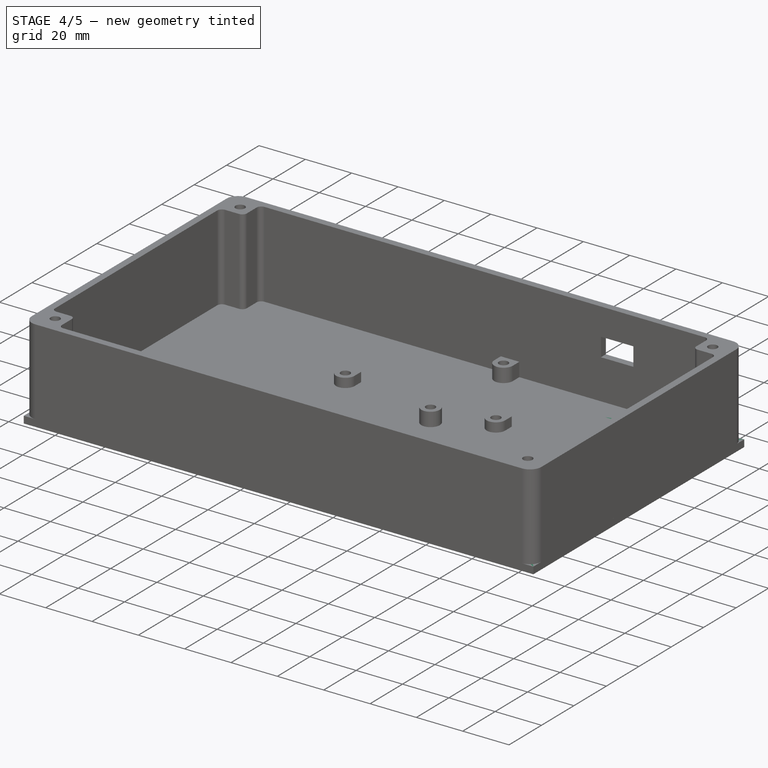
[diagram: stage 4 of 5 — iso view after this stage's code; geometry added in this stage tinted green]
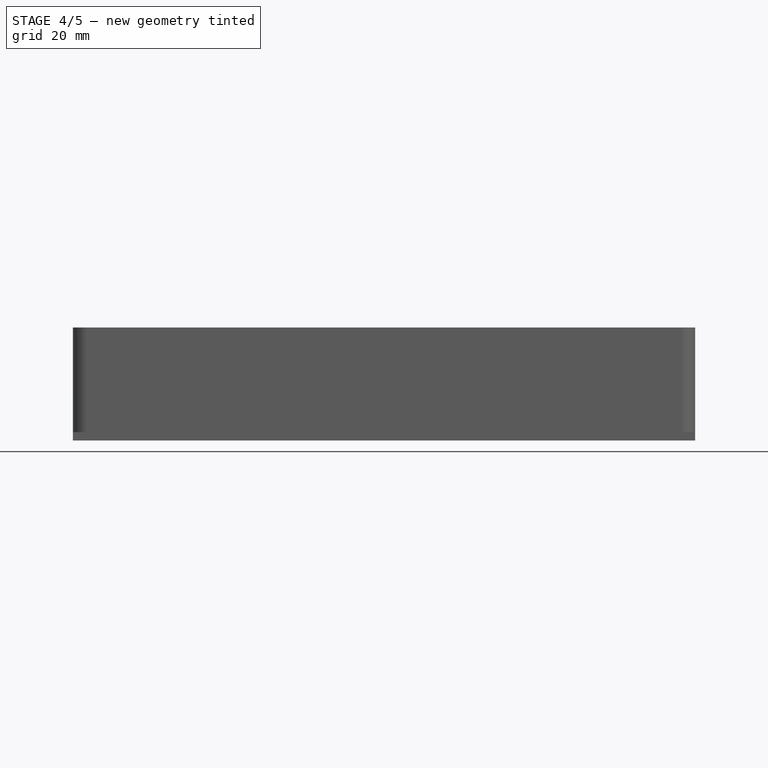
[diagram: stage 4 of 5 — front view after this stage's code; geometry added in this stage tinted green]
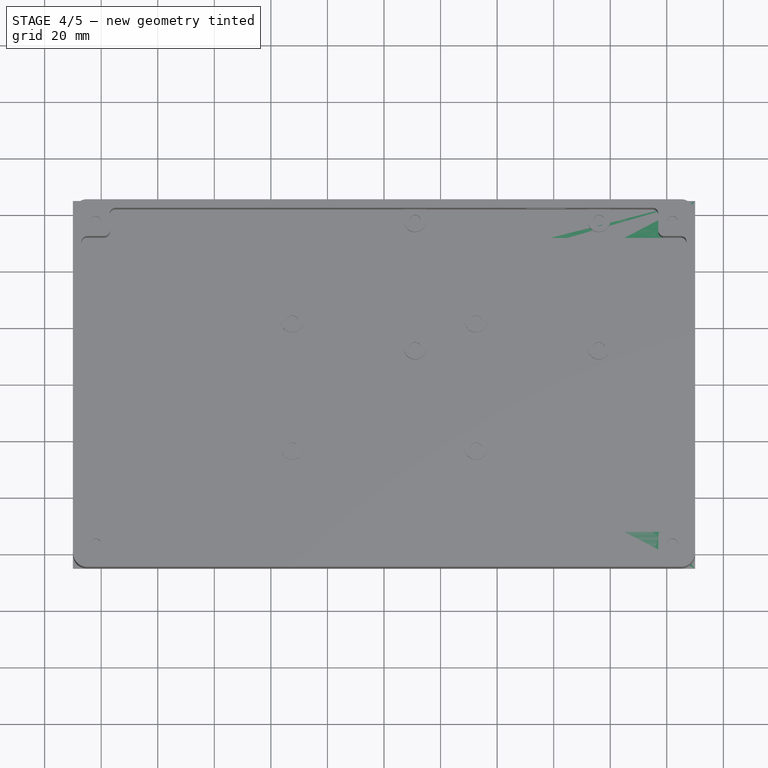
[diagram: stage 4 of 5 — top view after this stage's code; geometry added in this stage tinted green]
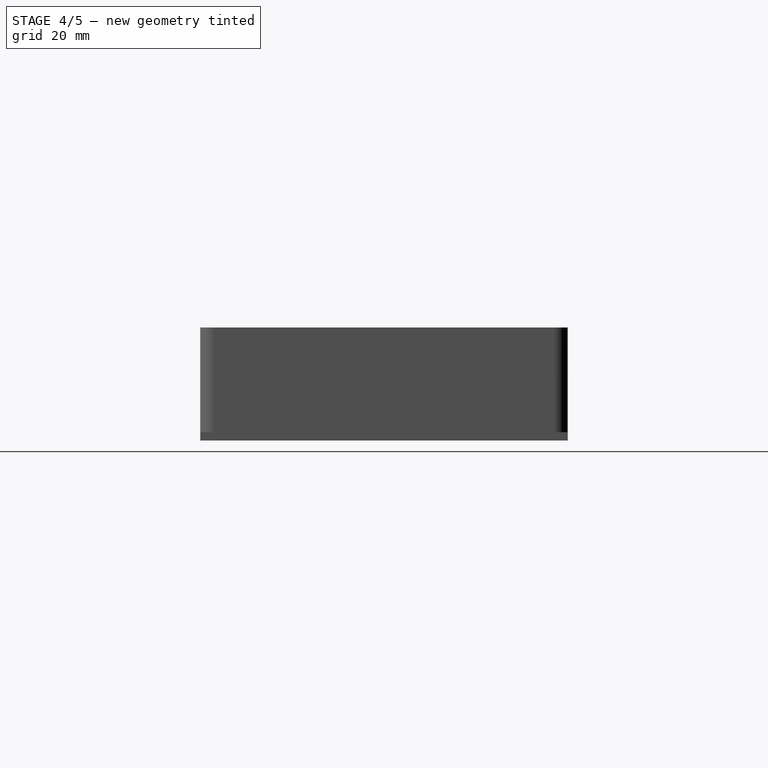
[diagram: stage 4 of 5 — right view after this stage's code; geometry added in this stage tinted green]
FEATURE [Sketcher::SketchObject] Sketch
  ArcFitTolerance = 1e-06
  AttachmentSupport = -> [XY_Plane]
  FullyConstrained = true
  MakeInternals = false
  MapMode = 5
  sketch-geometry (5):
    g0: LineSegment StartX=-110 StartY=-65 StartZ=0 EndX=110 EndY=-65 EndZ=0
    g1: LineSegment StartX=110 StartY=-65 StartZ=0 EndX=110 EndY=65 EndZ=0
    g2: LineSegment StartX=110 StartY=65 StartZ=0 EndX=-110 EndY=65 EndZ=0
    g3: LineSegment StartX=-110 StartY=65 StartZ=0 EndX=-110 EndY=-65 EndZ=0
    g4: GeomPoint [constr] X=0 Y=0 Z=0
  constraints (12):
    c: Coincident(g0,g1)
    c: Coincident(g1,g2)
    c: Coincident(g2,g3)
    c: Coincident(g3,g0)
    c: Horizontal(g0)
    c: Horizontal(g2)
    c: Vertical(g1)
    c: Vertical(g3)
    c: Symmetric(g2,g0,g4)
    c: Distance(g1,g3) = 220  'width'
    c: Distance(g0,g2) = 130  'depth'
    c: Coincident(g4,g-1)
FEATURE [PartDesign::Pad] Pad
  Direction = (0,0,1)
  Length = 3
  Length2 = 10
  Profile = -> Sketch
  ReferenceAxis = -> Sketch [N_Axis]
  Refine = true
  Suppressed = false
  Type = 0
FEATURE [Sketcher::SketchObject] Sketch001
  ArcFitTolerance = 1e-06
  AttachmentSupport = -> [Pad]
  ExternalGeometry = -> [Pad]
  FullyConstrained = true
  MakeInternals = false
  MapMode = 5
  Placement = pos=(0,0,0) rot=(1,0,0;3.14159rad)
  sketch-geometry (150):
    g0: LineSegment StartX=84 StartY=53 StartZ=0 EndX=84 EndY=37 EndZ=0
    g1: LineSegment StartX=84 StartY=37 StartZ=0 EndX=100 EndY=37 EndZ=0
    g2: LineSegment StartX=100 StartY=37 StartZ=0 EndX=100 EndY=53 EndZ=0
    g3: LineSegment StartX=100 StartY=53 StartZ=0 EndX=84 EndY=53 EndZ=0
    g4: LineSegment [constr] StartX=80 StartY=53 StartZ=0 EndX=80 EndY=-37 EndZ=0
    g5: LineSegment [constr] StartX=60 StartY=53 StartZ=0 EndX=60 EndY=-37 EndZ=0
    g6: LineSegment [constr] StartX=40 StartY=53 StartZ=0 EndX=40 EndY=-37 EndZ=0
    g7: LineSegment [constr] StartX=20 StartY=53 StartZ=0 EndX=20 EndY=-37 EndZ=0
    g8: LineSegment [constr] StartX=-4.8787e-12 StartY=53 StartZ=0 EndX=-4.8787e-12 EndY=-37 EndZ=0
    g9: LineSegment [constr] StartX=-20 StartY=53 StartZ=0 EndX=-20 EndY=-37 EndZ=0
    g10: LineSegment [constr] StartX=-40 StartY=53 StartZ=0 EndX=-40 EndY=-37 EndZ=0
    g11: LineSegment [constr] StartX=100 StartY=53 StartZ=0 EndX=80 EndY=53 EndZ=0
    g12: LineSegment [constr] StartX=80 StartY=53 StartZ=0 EndX=60 EndY=53 EndZ=0
    g13: LineSegment [constr] StartX=60 StartY=53 StartZ=0 EndX=40 EndY=53 EndZ=0
    g14: LineSegment [constr] StartX=40 StartY=53 StartZ=0 EndX=20 EndY=53 EndZ=0
    g15: LineSegment [constr] StartX=20 StartY=53 StartZ=0 EndX=-4.8779e-12 EndY=53 EndZ=0
    g16: LineSegment [constr] StartX=-4.8787e-12 StartY=53 StartZ=0 EndX=-20 EndY=53 EndZ=0
    g17: LineSegment [constr] StartX=-20 StartY=53 StartZ=0 EndX=-40 EndY=53 EndZ=0
    g18: LineSegment [constr] StartX=100 StartY=53 StartZ=0 EndX=100 EndY=23 EndZ=0
    g19: LineSegment [constr] StartX=100 StartY=23 StartZ=0 EndX=100 EndY=-7 EndZ=0
    g20: LineSegment [constr] StartX=100 StartY=-7 StartZ=0 EndX=100 EndY=-37 EndZ=0
    g21: LineSegment [constr] StartX=100 StartY=-37 StartZ=0 EndX=100 EndY=53 EndZ=0
    g22: LineSegment [constr] StartX=-40 StartY=53 StartZ=0 EndX=100 EndY=53 EndZ=0
    g23: LineSegment [constr] StartX=100 StartY=23 StartZ=0 EndX=-40 EndY=23 EndZ=0
    g24: LineSegment [constr] StartX=100 StartY=-7 StartZ=0 EndX=-40 EndY=-7 EndZ=0
    g25: LineSegment [constr] StartX=100 StartY=-37 StartZ=0 EndX=-40 EndY=-37 EndZ=0
    g26: LineSegment StartX=-56 StartY=23 StartZ=0 EndX=-56 EndY=7 EndZ=0
    g27: LineSegment StartX=-56 StartY=7 StartZ=0 EndX=-40 EndY=7 EndZ=0
    g28: LineSegment StartX=-40 StartY=7 StartZ=0 EndX=-40 EndY=23 EndZ=0
    g29: LineSegment StartX=-40 StartY=23 StartZ=0 EndX=-56 EndY=23 EndZ=0
    g30: LineSegment StartX=-36 StartY=23 StartZ=0 EndX=-36 EndY=7 EndZ=0
    g31: LineSegment StartX=-36 StartY=7 StartZ=0 EndX=-20 EndY=7 EndZ=0
    g32: LineSegment StartX=-20 StartY=7 StartZ=0 EndX=-20 EndY=23 EndZ=0
    g33: LineSegment StartX=-20 StartY=23 StartZ=0 EndX=-36 EndY=23 EndZ=0
    g34: LineSegment StartX=-16 StartY=23 StartZ=0 EndX=-16 EndY=7 EndZ=0
    g35: LineSegment StartX=-16 StartY=7 StartZ=0 EndX=-4.8779e-12 EndY=7 EndZ=0
    g36: LineSegment StartX=-4.8779e-12 StartY=7 StartZ=0 EndX=-4.8779e-12 EndY=23 EndZ=0
    g37: LineSegment StartX=-4.8779e-12 StartY=23 StartZ=0 EndX=-16 EndY=23 EndZ=0
    g38: LineSegment StartX=4 StartY=23 StartZ=0 EndX=4 EndY=7 EndZ=0
    g39: LineSegment StartX=4 StartY=7 StartZ=0 EndX=20 EndY=7 EndZ=0
    g40: LineSegment StartX=20 StartY=7 StartZ=0 EndX=20 EndY=23 EndZ=0
    g41: LineSegment StartX=20 StartY=23 StartZ=0 EndX=4 EndY=23 EndZ=0
    g42: LineSegment StartX=24 StartY=23 StartZ=0 EndX=24 EndY=7 EndZ=0
    g43: LineSegment StartX=24 StartY=7 StartZ=0 EndX=40 EndY=7 EndZ=0
    g44: LineSegment StartX=40 StartY=7 StartZ=0 EndX=40 EndY=23 EndZ=0
    g45: LineSegment StartX=40 StartY=23 StartZ=0 EndX=24 EndY=23 EndZ=0
    g46: LineSegment StartX=44 StartY=23 StartZ=0 EndX=44 EndY=7 EndZ=0
    g47: LineSegment StartX=44 StartY=7 StartZ=0 EndX=60 EndY=7 EndZ=0
    g48: LineSegment StartX=60 StartY=7 StartZ=0 EndX=60 EndY=23 EndZ=0
    g49: LineSegment StartX=60 StartY=23 StartZ=0 EndX=44 EndY=23 EndZ=0
    g50: LineSegment StartX=64 StartY=23 StartZ=0 EndX=64 EndY=7 EndZ=0
    g51: LineSegment StartX=64 StartY=7 StartZ=0 EndX=80 EndY=7 EndZ=0
    g52: LineSegment StartX=80 StartY=7 StartZ=0 EndX=80 EndY=23 EndZ=0
    g53: LineSegment StartX=80 StartY=23 StartZ=0 EndX=64 EndY=23 EndZ=0
    g54: LineSegment StartX=84 StartY=23 StartZ=0 EndX=84 EndY=7 EndZ=0
    g55: LineSegment StartX=84 StartY=7 StartZ=0 EndX=100 EndY=7 EndZ=0
    g56: LineSegment StartX=100 StartY=7 StartZ=0 EndX=100 EndY=23 EndZ=0
    g57: LineSegment StartX=100 StartY=23 StartZ=0 EndX=84 EndY=23 EndZ=0
    g58: LineSegment StartX=-56 StartY=-7 StartZ=0 EndX=-56 EndY=-23 EndZ=0
    g59: LineSegment StartX=-56 StartY=-23 StartZ=0 EndX=-40 EndY=-23 EndZ=0
    g60: LineSegment StartX=-40 StartY=-23 StartZ=0 EndX=-40 EndY=-7 EndZ=0
    g61: LineSegment StartX=-40 StartY=-7 StartZ=0 EndX=-56 EndY=-7 EndZ=0
    g62: LineSegment StartX=-36 StartY=-7 StartZ=0 EndX=-36 EndY=-23 EndZ=0
    g63: LineSegment StartX=-36 StartY=-23 StartZ=0 EndX=-20 EndY=-23 EndZ=0
    g64: LineSegment StartX=-20 StartY=-23 StartZ=0 EndX=-20 EndY=-7 EndZ=0
    g65: LineSegment StartX=-20 StartY=-7 StartZ=0 EndX=-36 EndY=-7 EndZ=0
    g66: LineSegment StartX=-16 StartY=-7 StartZ=0 EndX=-16 EndY=-23 EndZ=0
    g67: LineSegment StartX=-16 StartY=-23 StartZ=0 EndX=-4.8779e-12 EndY=-23 EndZ=0
    g68: LineSegment StartX=-4.8787e-12 StartY=-23 StartZ=0 EndX=-4.8787e-12 EndY=-7 EndZ=0
    g69: LineSegment StartX=-4.8787e-12 StartY=-7 StartZ=0 EndX=-16 EndY=-7 EndZ=0
    g70: LineSegment StartX=4 StartY=-7 StartZ=0 EndX=4 EndY=-23 EndZ=0
    g71: LineSegment StartX=4 StartY=-23 StartZ=0 EndX=20 EndY=-23 EndZ=0
    g72: LineSegment StartX=20 StartY=-23 StartZ=0 EndX=20 EndY=-7 EndZ=0
    g73: LineSegment StartX=20 StartY=-7 StartZ=0 EndX=4 EndY=-7 EndZ=0
    g74: LineSegment StartX=24 StartY=-7 StartZ=0 EndX=24 EndY=-23 EndZ=0
    g75: LineSegment StartX=24 StartY=-23 StartZ=0 EndX=40 EndY=-23 EndZ=0
    g76: LineSegment StartX=40 StartY=-23 StartZ=0 EndX=40 EndY=-7 EndZ=0
    g77: LineSegment StartX=40 StartY=-7 StartZ=0 EndX=24 EndY=-7 EndZ=0
    g78: LineSegment StartX=44 StartY=-7 StartZ=0 EndX=44 EndY=-23 EndZ=0
    g79: LineSegment StartX=44 StartY=-23 StartZ=0 EndX=60 EndY=-23 EndZ=0
    g80: LineSegment StartX=60 StartY=-23 StartZ=0 EndX=60 EndY=-7 EndZ=0
    g81: LineSegment StartX=60 StartY=-7 StartZ=0 EndX=44 EndY=-7 EndZ=0
    g82: LineSegment StartX=64 StartY=-7 StartZ=0 EndX=64 EndY=-23 EndZ=0
    g83: LineSegment StartX=64 StartY=-23 StartZ=0 EndX=80 EndY=-23 EndZ=0
    g84: LineSegment StartX=80 StartY=-23 StartZ=0 EndX=80 EndY=-7 EndZ=0
    g85: LineSegment StartX=80 StartY=-7 StartZ=0 EndX=64 EndY=-7 EndZ=0
    g86: LineSegment StartX=84 StartY=-7 StartZ=0 EndX=84 EndY=-23 EndZ=0
    g87: LineSegment StartX=84 StartY=-23 StartZ=0 EndX=100 EndY=-23 EndZ=0
    g88: LineSegment StartX=100 StartY=-23 StartZ=0 EndX=100 EndY=-7 EndZ=0
    g89: LineSegment StartX=100 StartY=-7 StartZ=0 EndX=84 EndY=-7 EndZ=0
    g90: LineSegment StartX=-56 StartY=-37 StartZ=0 EndX=-56 EndY=-53 EndZ=0
    g91: LineSegment StartX=-56 StartY=-53 StartZ=0 EndX=-40 EndY=-53 EndZ=0
    g92: LineSegment StartX=-40 StartY=-53 StartZ=0 EndX=-40 EndY=-37 EndZ=0
    g93: LineSegment StartX=-40 StartY=-37 StartZ=0 EndX=-56 EndY=-37 EndZ=0
    g94: LineSegment StartX=-36 StartY=-37 StartZ=0 EndX=-36 EndY=-53 EndZ=0
    g95: LineSegment StartX=-36 StartY=-53 StartZ=0 EndX=-20 EndY=-53 EndZ=0
    g96: LineSegment StartX=-20 StartY=-53 StartZ=0 EndX=-20 EndY=-37 EndZ=0
    g97: LineSegment StartX=-20 StartY=-37 StartZ=0 EndX=-36 EndY=-37 EndZ=0
    g98: LineSegment StartX=-16 StartY=-37 StartZ=0 EndX=-16 EndY=-53 EndZ=0
    g99: LineSegment StartX=-16 StartY=-53 StartZ=0 EndX=-4.8779e-12 EndY=-53 EndZ=0
    g100: LineSegment StartX=-4.8787e-12 StartY=-53 StartZ=0 EndX=-4.8787e-12 EndY=-37 EndZ=0
    g101: LineSegment StartX=-4.8787e-12 StartY=-37 StartZ=0 EndX=-16 EndY=-37 EndZ=0
    g102: LineSegment StartX=4 StartY=-37 StartZ=0 EndX=4 EndY=-53 EndZ=0
    g103: LineSegment StartX=4 StartY=-53 StartZ=0 EndX=20 EndY=-53 EndZ=0
    g104: LineSegment StartX=20 StartY=-53 StartZ=0 EndX=20 EndY=-37 EndZ=0
    g105: LineSegment StartX=20 StartY=-37 StartZ=0 EndX=4 EndY=-37 EndZ=0
    g106: LineSegment StartX=24 StartY=-37 StartZ=0 EndX=24 EndY=-53 EndZ=0
    g107: LineSegment StartX=24 StartY=-53 StartZ=0 EndX=40 EndY=-53 EndZ=0
    g108: LineSegment StartX=40 StartY=-53 StartZ=0 EndX=40 EndY=-37 EndZ=0
    g109: LineSegment StartX=40 StartY=-37 StartZ=0 EndX=24 EndY=-37 EndZ=0
    g110: LineSegment StartX=44 StartY=-37 StartZ=0 EndX=44 EndY=-53 EndZ=0
    g111: LineSegment StartX=44 StartY=-53 StartZ=0 EndX=60 EndY=-53 EndZ=0
    g112: LineSegment StartX=60 StartY=-53 StartZ=0 EndX=60 EndY=-37 EndZ=0
    g113: LineSegment StartX=60 StartY=-37 StartZ=0 EndX=44 EndY=-37 EndZ=0
    g114: LineSegment StartX=64 StartY=-37 StartZ=0 EndX=64 EndY=-53 EndZ=0
    g115: LineSegment StartX=64 StartY=-53 StartZ=0 EndX=80 EndY=-53 EndZ=0
    g116: LineSegment StartX=80 StartY=-53 StartZ=0 EndX=80 EndY=-37 EndZ=0
    g117: LineSegment StartX=80 StartY=-37 StartZ=0 EndX=64 EndY=-37 EndZ=0
    g118: LineSegment StartX=84 StartY=-37 StartZ=0 EndX=84 EndY=-53 EndZ=0
    g119: LineSegment StartX=84 StartY=-53 StartZ=0 EndX=100 EndY=-53 EndZ=0
    g120: LineSegment StartX=100 StartY=-53 StartZ=0 EndX=100 EndY=-37 EndZ=0
    g121: LineSegment StartX=100 StartY=-37 StartZ=0 EndX=84 EndY=-37 EndZ=0
    g122: LineSegment StartX=-56 StartY=53 StartZ=0 EndX=-56 EndY=37 EndZ=0
    g123: LineSegment StartX=-56 StartY=37 StartZ=0 EndX=-40 EndY=37 EndZ=0
    g124: LineSegment StartX=-40 StartY=37 StartZ=0 EndX=-40 EndY=53 EndZ=0
    g125: LineSegment StartX=-40 StartY=53 StartZ=0 EndX=-56 EndY=53 EndZ=0
    g126: LineSegment StartX=-36 StartY=53 StartZ=0 EndX=-36 EndY=37 EndZ=0
    g127: LineSegment StartX=-36 StartY=37 StartZ=0 EndX=-20 EndY=37 EndZ=0
    g128: LineSegment StartX=-20 StartY=37 StartZ=0 EndX=-20 EndY=53 EndZ=0
    g129: LineSegment StartX=-20 StartY=53 StartZ=0 EndX=-36 EndY=53 EndZ=0
    g130: LineSegment StartX=-16 StartY=53 StartZ=0 EndX=-16 EndY=37 EndZ=0
    g131: LineSegment StartX=-16 StartY=37 StartZ=0 EndX=-4.8779e-12 EndY=37 EndZ=0
    g132: LineSegment StartX=-4.8787e-12 StartY=37 StartZ=0 EndX=-4.8787e-12 EndY=53 EndZ=0
    g133: LineSegment StartX=-4.8787e-12 StartY=53 StartZ=0 EndX=-16 EndY=53 EndZ=0
    g134: LineSegment StartX=4 StartY=53 StartZ=0 EndX=4 EndY=37 EndZ=0
    g135: LineSegment StartX=4 StartY=37 StartZ=0 EndX=20 EndY=37 EndZ=0
    g136: LineSegment StartX=20 StartY=37 StartZ=0 EndX=20 EndY=53 EndZ=0
    g137: LineSegment StartX=20 StartY=53 StartZ=0 EndX=4 EndY=53 EndZ=0
    g138: LineSegment StartX=24 StartY=53 StartZ=0 EndX=24 EndY=37 EndZ=0
    g139: LineSegment StartX=24 StartY=37 StartZ=0 EndX=40 EndY=37 EndZ=0
    g140: LineSegment StartX=40 StartY=37 StartZ=0 EndX=40 EndY=53 EndZ=0
    g141: LineSegment StartX=40 StartY=53 StartZ=0 EndX=24 EndY=53 EndZ=0
    g142: LineSegment StartX=44 StartY=53 StartZ=0 EndX=44 EndY=37 EndZ=0
    g143: LineSegment StartX=44 StartY=37 StartZ=0 EndX=60 EndY=37 EndZ=0
    g144: LineSegment StartX=60 StartY=37 StartZ=0 EndX=60 EndY=53 EndZ=0
    g145: LineSegment StartX=60 StartY=53 StartZ=0 EndX=44 EndY=53 EndZ=0
    g146: LineSegment StartX=64 StartY=53 StartZ=0 EndX=64 EndY=37 EndZ=0
    g147: LineSegment StartX=64 StartY=37 StartZ=0 EndX=80 EndY=37 EndZ=0
    g148: LineSegment StartX=80 StartY=37 StartZ=0 EndX=80 EndY=53 EndZ=0
    g149: LineSegment StartX=80 StartY=53 StartZ=0 EndX=64 EndY=53 EndZ=0
  constraints (430):
    c: Coincident(g0,g1)
    c: Coincident(g1,g2)
    c: Coincident(g2,g3)
    c: Coincident(g3,g0)
    c: Vertical(g0)
    c: Vertical(g2)
    c: Horizontal(g1)
    c: Horizontal(g3)
    c: Equal(g3,g2)
    c: DistanceY(g11,g-4) = 12
    c: DistanceX(g11,g-4) = 10
    c: Coincident(g11,g4)
    c: Horizontal(g11)
    c: Coincident(g12,g4)
    c: Coincident(g12,g5)
    c: Horizontal(g12)
    c: Coincident(g13,g5)
    c: Coincident(g13,g6)
    c: Horizontal(g13)
    c: Coincident(g14,g6)
    c: Coincident(g14,g7)
    c: Coincident(g15,g7)
    c: Coincident(g15,g8)
    c: Coincident(g16,g8)
    c: Coincident(g16,g9)
    c: Horizontal(g16)
    c: Coincident(g17,g9)
    c: Coincident(g17,g10)
    c: Horizontal(g17)
    c: Equal(g17,g16)
    c: Equal(g16,g15)
    c: Equal(g15,g14)
    c: Equal(g14,g13)
    c: Equal(g13,g12)
    c: Equal(g12,g11)
    c: Vertical(g4)
    c: Vertical(g5)
    c: Vertical(g6)
    c: Vertical(g7)
    c: Vertical(g8)
    c: Vertical(g9)
    c: Vertical(g10)
    c: Equal(g4,g5)
    c: Equal(g5,g6)
    c: Equal(g6,g7)
    c: Equal(g7,g8)
    c: Equal(g8,g9)
    c: Equal(g9,g10)
    c: Coincident(g18,g11)
    c: Vertical(g18)
    c: Coincident(g19,g18)
    c: Coincident(g20,g19)
    c: Equal(g20,g19)
    c: Equal(g19,g18)
    c: Coincident(g21,g20)
    c: Coincident(g21,g2)
    c: Vertical(g21)
    c: Equal(g21,g4)
    c: Vertical(g19)
    c: Coincident(g2,g11)
    c: Coincident(g22,g10)
    c: Coincident(g22,g2)
    c: Horizontal(g22)
    c: Coincident(g23,g18)
    c: Horizontal(g23)
    c: Coincident(g24,g19)
    c: Horizontal(g24)
    c: Coincident(g25,g20)
    c: Horizontal(g25)
    c: Equal(g22,g23)
    c: Equal(g23,g24)
    c: Equal(g24,g25)
    c: Horizontal(g14)
    c: DistanceX(g11,g11) = 20
    c: DistanceY(g18,g18) = 30
    c: Coincident(g122,g123)
    c: Coincident(g26,g27)
    c: Coincident(g58,g59)
    c: Coincident(g90,g91)
    c: Coincident(g123,g124)
    c: Coincident(g27,g28)
    c: Coincident(g59,g60)
    c: Coincident(g91,g92)
    c: Coincident(g124,g125)
    c: Coincident(g28,g29)
    c: Coincident(g60,g61)
    c: Coincident(g92,g93)
    c: Coincident(g125,g122)
    c: Coincident(g29,g26)
    c: Coincident(g61,g58)
    c: Coincident(g93,g90)
    c: Vertical(g122)
    c: Vertical(g26)
    c: Vertical(g58)
    c: Vertical(g90)
    c: Vertical(g124)
    c: Vertical(g28)
    c: Vertical(g60)
    c: Vertical(g92)
    c: Horizontal(g123)
    c: Horizontal(g27)
    c: Horizontal(g59)
    c: Horizontal(g91)
    c: Horizontal(g125)
    c: Horizontal(g29)
    c: Horizontal(g61)
    c: Horizontal(g93)
    c: Distance(g122,g124) = 16
    c: Coincident(g126,g127)
    c: Coincident(g30,g31)
    c: Coincident(g62,g63)
    c: Coincident(g94,g95)
    c: Coincident(g127,g128)
    c: Coincident(g31,g32)
    c: Coincident(g63,g64)
    c: Coincident(g95,g96)
    c: Coincident(g128,g129)
    c: Coincident(g32,g33)
    c: Coincident(g64,g65)
    c: Coincident(g96,g97)
    c: Coincident(g129,g126)
    c: Coincident(g33,g30)
    c: Coincident(g65,g62)
    c: Coincident(g97,g94)
    c: Vertical(g126)
    c: Vertical(g30)
    c: Vertical(g62)
    c: Vertical(g94)
    c: Vertical(g128)
    c: Vertical(g32)
    c: Vertical(g64)
    c: Vertical(g96)
    c: Horizontal(g127)
    c: Horizontal(g31)
    c: Horizontal(g63)
    c: Horizontal(g95)
    c: Horizontal(g129)
    c: Horizontal(g33)
    c: Horizontal(g65)
    c: Horizontal(g97)
    c: Coincident(g130,g131)
    c: Coincident(g34,g35)
    c: Coincident(g66,g67)
    c: Coincident(g98,g99)
    c: Coincident(g131,g132)
    c: Coincident(g35,g36)
    c: Coincident(g67,g68)
    c: Coincident(g99,g100)
    c: Coincident(g132,g133)
    c: Coincident(g36,g37)
    c: Coincident(g68,g69)
    c: Coincident(g100,g101)
    c: Coincident(g133,g130)
    c: Coincident(g37,g34)
    c: Coincident(g69,g66)
    c: Coincident(g101,g98)
    c: Vertical(g130)
    c: Vertical(g34)
    c: Vertical(g66)
    c: Vertical(g98)
    c: Vertical(g132)
    c: Vertical(g36)
    c: Vertical(g68)
    c: Vertical(g100)
    c: Horizontal(g131)
    c: Horizontal(g35)
    c: Horizontal(g67)
    c: Horizontal(g99)
    c: Horizontal(g133)
    c: Horizontal(g37)
    c: Horizontal(g69)
    c: Horizontal(g101)
    c: Coincident(g134,g135)
    c: Coincident(g38,g39)
    c: Coincident(g70,g71)
    c: Coincident(g102,g103)
    c: Coincident(g135,g136)
    c: Coincident(g39,g40)
    c: Coincident(g71,g72)
    c: Coincident(g103,g104)
    c: Coincident(g136,g137)
    c: Coincident(g40,g41)
    c: Coincident(g72,g73)
    c: Coincident(g104,g105)
    c: Coincident(g137,g134)
    c: Coincident(g41,g38)
    c: Coincident(g73,g70)
    c: Coincident(g105,g102)
    c: Vertical(g134)
    c: Vertical(g38)
    c: Vertical(g70)
    c: Vertical(g102)
    c: Vertical(g136)
    c: Vertical(g40)
    c: Vertical(g72)
    c: Vertical(g104)
    c: Horizontal(g135)
    c: Horizontal(g39)
    c: Horizontal(g71)
    c: Horizontal(g103)
    c: Horizontal(g137)
    c: Horizontal(g41)
    c: Horizontal(g73)
    c: Horizontal(g105)
    c: Coincident(g138,g139)
    c: Coincident(g42,g43)
    c: Coincident(g74,g75)
    c: Coincident(g106,g107)
    c: Coincident(g139,g140)
    c: Coincident(g43,g44)
    c: Coincident(g75,g76)
    c: Coincident(g107,g108)
    c: Coincident(g140,g141)
    c: Coincident(g44,g45)
    c: Coincident(g76,g77)
    c: Coincident(g108,g109)
    c: Coincident(g141,g138)
    c: Coincident(g45,g42)
    c: Coincident(g77,g74)
    c: Coincident(g109,g106)
    c: Vertical(g138)
    c: Vertical(g42)
    c: Vertical(g74)
    c: Vertical(g106)
    c: Vertical(g140)
    c: Vertical(g44)
    c: Vertical(g76)
    c: Vertical(g108)
    c: Horizontal(g139)
    c: Horizontal(g43)
    c: Horizontal(g75)
    c: Horizontal(g107)
    c: Horizontal(g141)
    c: Horizontal(g45)
    c: Horizontal(g77)
    c: Horizontal(g109)
    c: Coincident(g142,g143)
    c: Coincident(g46,g47)
    c: Coincident(g78,g79)
    c: Coincident(g110,g111)
    c: Coincident(g143,g144)
    c: Coincident(g47,g48)
    c: Coincident(g79,g80)
    c: Coincident(g111,g112)
    c: Coincident(g144,g145)
    c: Coincident(g48,g49)
    c: Coincident(g80,g81)
    c: Coincident(g112,g113)
    c: Coincident(g145,g142)
    c: Coincident(g49,g46)
    c: Coincident(g81,g78)
    c: Coincident(g113,g110)
    c: Vertical(g142)
    c: Vertical(g46)
    c: Vertical(g78)
    c: Vertical(g110)
    c: Vertical(g144)
    c: Vertical(g48)
    c: Vertical(g80)
    c: Vertical(g112)
    c: Horizontal(g143)
    c: Horizontal(g47)
    c: Horizontal(g79)
    c: Horizontal(g111)
    c: Horizontal(g145)
    c: Horizontal(g49)
    c: Horizontal(g81)
    c: Horizontal(g113)
    c: Coincident(g146,g147)
    c: Coincident(g50,g51)
    c: Coincident(g82,g83)
    c: Coincident(g114,g115)
    c: Coincident(g147,g148)
    c: Coincident(g51,g52)
    c: Coincident(g83,g84)
    c: Coincident(g115,g116)
    c: Coincident(g148,g149)
    c: Coincident(g52,g53)
    c: Coincident(g84,g85)
    c: Coincident(g116,g117)
    c: Coincident(g149,g146)
    c: Coincident(g53,g50)
    c: Coincident(g85,g82)
    c: Coincident(g117,g114)
    c: Vertical(g146)
    c: Vertical(g50)
    c: Vertical(g82)
    c: Vertical(g114)
    c: Vertical(g148)
    c: Vertical(g52)
    c: Vertical(g84)
    c: Vertical(g116)
    c: Horizontal(g147)
    c: Horizontal(g51)
    c: Horizontal(g83)
    c: Horizontal(g115)
    c: Horizontal(g149)
    c: Horizontal(g53)
    c: Horizontal(g85)
    c: Horizontal(g117)
    c: Coincident(g54,g55)
    c: Coincident(g86,g87)
    c: Coincident(g118,g119)
    c: Coincident(g55,g56)
    c: Coincident(g87,g88)
    c: Coincident(g119,g120)
    c: Coincident(g56,g57)
    c: Coincident(g88,g89)
    c: Coincident(g120,g121)
    c: Coincident(g57,g54)
    c: Coincident(g89,g86)
    c: Coincident(g121,g118)
    c: Vertical(g54)
    c: Vertical(g86)
    c: Vertical(g118)
    c: Vertical(g56)
    c: Vertical(g88)
    c: Vertical(g120)
    c: Horizontal(g55)
    c: Horizontal(g87)
    c: Horizontal(g119)
    c: Horizontal(g57)
    c: Horizontal(g89)
    c: Horizontal(g121)
    c: Equal(g57,g56)
    c: Equal(g89,g88)
    c: Equal(g121,g120)
    c: Equal(g149,g148)
    c: Equal(g53,g52)
    c: Equal(g85,g84)
    c: Equal(g117,g116)
    c: Equal(g145,g144)
    c: Equal(g49,g48)
    c: Equal(g81,g80)
    c: Equal(g113,g112)
    c: Equal(g141,g140)
    c: Equal(g45,g44)
    c: Equal(g77,g76)
    c: Equal(g109,g108)
    c: Equal(g137,g136)
    c: Equal(g41,g40)
    c: Equal(g73,g72)
    c: Equal(g105,g104)
    c: Equal(g133,g132)
    c: Equal(g37,g36)
    c: Equal(g69,g68)
    c: Equal(g101,g100)
    c: Equal(g129,g128)
    c: Equal(g33,g32)
    c: Equal(g65,g64)
    c: Equal(g97,g96)
    c: Equal(g122,g125)
    c: Equal(g26,g29)
    c: Equal(g58,g61)
    c: Equal(g90,g93)
    c: Equal(g125,g129)
    c: Equal(g29,g33)
    c: Equal(g61,g65)
    c: Equal(g93,g97)
    c: Equal(g129,g133)
    c: Equal(g33,g37)
    c: Equal(g65,g69)
    c: Equal(g97,g101)
    c: Equal(g133,g137)
    c: Equal(g37,g41)
    c: Equal(g69,g73)
    c: Equal(g101,g105)
    c: Equal(g137,g141)
    c: Equal(g41,g45)
    c: Equal(g73,g77)
    c: Equal(g105,g109)
    c: Equal(g141,g145)
    c: Equal(g45,g49)
    c: Equal(g77,g81)
    c: Equal(g109,g113)
    c: Equal(g145,g149)
    c: Equal(g49,g53)
    c: Equal(g81,g85)
    c: Equal(g113,g117)
    c: Equal(g53,g57)
    c: Equal(g85,g89)
    c: Equal(g117,g121)
    c: Equal(g93,g61)
    c: Equal(g61,g29)
    c: Equal(g29,g125)
    c: Coincident(g148,g4)
    c: Coincident(g144,g5)
    c: Coincident(g140,g6)
    c: Coincident(g136,g7)
    c: Coincident(g132,g8)
    c: Coincident(g128,g9)
    c: Coincident(g124,g10)
    c: Coincident(g56,g18)
    c: Coincident(g88,g19)
    c: Coincident(g120,g20)
    c: Equal(g3,g149)
    c: PointOnObject(g52,g4)
    c: PointOnObject(g52,g23)
    c: PointOnObject(g48,g23)
    c: PointOnObject(g48,g5)
    c: PointOnObject(g44,g6)
    c: PointOnObject(g44,g23)
    c: PointOnObject(g40,g7)
    c: PointOnObject(g40,g23)
    c: PointOnObject(g36,g8)
    c: PointOnObject(g36,g23)
    c: PointOnObject(g32,g9)
    c: PointOnObject(g32,g23)
    c: PointOnObject(g28,g10)
    c: PointOnObject(g28,g23)
    c: PointOnObject(g84,g24)
    c: PointOnObject(g84,g4)
    c: PointOnObject(g80,g24)
    c: PointOnObject(g80,g5)
    c: PointOnObject(g76,g6)
    c: PointOnObject(g76,g24)
    c: PointOnObject(g72,g7)
    c: PointOnObject(g72,g24)
    c: PointOnObject(g64,g9)
    c: PointOnObject(g64,g24)
    c: PointOnObject(g68,g8)
    c: PointOnObject(g68,g24)
    c: Coincident(g60,g24)
    c: Coincident(g92,g10)
    c: Coincident(g96,g9)
    c: Coincident(g100,g8)
    c: Coincident(g104,g7)
    c: Coincident(g108,g6)
    c: Coincident(g112,g5)
    c: Coincident(g116,g4)
FEATURE [PartDesign::Pocket] Pocket
  BaseFeature = -> Pad
  Direction = (0,0,1)
  Length = 2
  Length2 = 5
  Profile = -> Sketch001
  ReferenceAxis = -> Sketch001 [N_Axis]
  Refine = true
  Suppressed = false
  Type = 0
FEATURE [Sketcher::SketchObject] Sketch002
  ArcFitTolerance = 1e-06
  AttachmentSupport = -> [Pocket]
  ExternalGeometry = -> [Pocket]
  FullyConstrained = true
  MakeInternals = false
  MapMode = 5
  Placement = pos=(0,0,2) rot=(1,0,0;3.14159rad)
  sketch-geometry (150):
    g0: LineSegment StartX=85 StartY=52 StartZ=0 EndX=85 EndY=38 EndZ=0
    g1: LineSegment StartX=85 StartY=38 StartZ=0 EndX=99 EndY=38 EndZ=0
    g2: LineSegment StartX=99 StartY=38 StartZ=0 EndX=99 EndY=52 EndZ=0
    g3: LineSegment StartX=99 StartY=52 StartZ=0 EndX=85 EndY=52 EndZ=0
    g4: LineSegment [constr] StartX=79 StartY=52 StartZ=0 EndX=79 EndY=-38 EndZ=0
    g5: LineSegment [constr] StartX=59 StartY=52 StartZ=0 EndX=59 EndY=-38 EndZ=0
    g6: LineSegment [constr] StartX=39 StartY=52 StartZ=0 EndX=39 EndY=-38 EndZ=0
    g7: LineSegment [constr] StartX=19 StartY=52 StartZ=0 EndX=19 EndY=-38 EndZ=0
    g8: LineSegment [constr] StartX=-1 StartY=52 StartZ=0 EndX=-1 EndY=-38 EndZ=0
    g9: LineSegment [constr] StartX=-21 StartY=52 StartZ=0 EndX=-21 EndY=-38 EndZ=0
    g10: LineSegment [constr] StartX=-41 StartY=52 StartZ=0 EndX=-41 EndY=-38 EndZ=0
    g11: LineSegment [constr] StartX=99 StartY=52 StartZ=0 EndX=79 EndY=52 EndZ=0
    g12: LineSegment [constr] StartX=79 StartY=52 StartZ=0 EndX=59 EndY=52 EndZ=0
    g13: LineSegment [constr] StartX=59 StartY=52 StartZ=0 EndX=39 EndY=52 EndZ=0
    g14: LineSegment [constr] StartX=39 StartY=52 StartZ=0 EndX=19 EndY=52 EndZ=0
    g15: LineSegment [constr] StartX=19 StartY=52 StartZ=0 EndX=-1 EndY=52 EndZ=0
    g16: LineSegment [constr] StartX=-1 StartY=52 StartZ=0 EndX=-21 EndY=52 EndZ=0
    g17: LineSegment [constr] StartX=-21 StartY=52 StartZ=0 EndX=-41 EndY=52 EndZ=0
    g18: LineSegment [constr] StartX=99 StartY=52 StartZ=0 EndX=99 EndY=22 EndZ=0
    g19: LineSegment [constr] StartX=99 StartY=22 StartZ=0 EndX=99 EndY=-8 EndZ=0
    g20: LineSegment [constr] StartX=99 StartY=-8 StartZ=0 EndX=99 EndY=-38 EndZ=0
    g21: LineSegment [constr] StartX=99 StartY=-38 StartZ=0 EndX=99 EndY=52 EndZ=0
    g22: LineSegment [constr] StartX=-41 StartY=52 StartZ=0 EndX=99 EndY=52 EndZ=0
    g23: LineSegment [constr] StartX=99 StartY=22 StartZ=0 EndX=-41 EndY=22 EndZ=0
    g24: LineSegment [constr] StartX=99 StartY=-8 StartZ=0 EndX=-41 EndY=-8 EndZ=0
    g25: LineSegment [constr] StartX=99 StartY=-38 StartZ=0 EndX=-41 EndY=-38 EndZ=0
    g26: LineSegment StartX=-55 StartY=22 StartZ=0 EndX=-55 EndY=8 EndZ=0
    g27: LineSegment StartX=-55 StartY=8 StartZ=0 EndX=-41 EndY=8 EndZ=0
    g28: LineSegment StartX=-41 StartY=8 StartZ=0 EndX=-41 EndY=22 EndZ=0
    g29: LineSegment StartX=-41 StartY=22 StartZ=0 EndX=-55 EndY=22 EndZ=0
    g30: LineSegment StartX=-35 StartY=22 StartZ=0 EndX=-35 EndY=8 EndZ=0
    g31: LineSegment StartX=-35 StartY=8 StartZ=0 EndX=-21 EndY=8 EndZ=0
    g32: LineSegment StartX=-21 StartY=8 StartZ=0 EndX=-21 EndY=22 EndZ=0
    g33: LineSegment StartX=-21 StartY=22 StartZ=0 EndX=-35 EndY=22 EndZ=0
    g34: LineSegment StartX=-15 StartY=22 StartZ=0 EndX=-15 EndY=8 EndZ=0
    g35: LineSegment StartX=-15 StartY=8 StartZ=0 EndX=-1 EndY=8 EndZ=0
    g36: LineSegment StartX=-1 StartY=8 StartZ=0 EndX=-1 EndY=22 EndZ=0
    g37: LineSegment StartX=-1 StartY=22 StartZ=0 EndX=-15 EndY=22 EndZ=0
    g38: LineSegment StartX=5 StartY=22 StartZ=0 EndX=5 EndY=8 EndZ=0
    g39: LineSegment StartX=5 StartY=8 StartZ=0 EndX=19 EndY=8 EndZ=0
    g40: LineSegment StartX=19 StartY=8 StartZ=0 EndX=19 EndY=22 EndZ=0
    g41: LineSegment StartX=19 StartY=22 StartZ=0 EndX=5 EndY=22 EndZ=0
    g42: LineSegment StartX=25 StartY=22 StartZ=0 EndX=25 EndY=8 EndZ=0
    g43: LineSegment StartX=25 StartY=8 StartZ=0 EndX=39 EndY=8 EndZ=0
    g44: LineSegment StartX=39 StartY=8 StartZ=0 EndX=39 EndY=22 EndZ=0
    g45: LineSegment StartX=39 StartY=22 StartZ=0 EndX=25 EndY=22 EndZ=0
    g46: LineSegment StartX=45 StartY=22 StartZ=0 EndX=45 EndY=8 EndZ=0
    g47: LineSegment StartX=45 StartY=8 StartZ=0 EndX=59 EndY=8 EndZ=0
    g48: LineSegment StartX=59 StartY=8 StartZ=0 EndX=59 EndY=22 EndZ=0
    g49: LineSegment StartX=59 StartY=22 StartZ=0 EndX=45 EndY=22 EndZ=0
    g50: LineSegment StartX=65 StartY=22 StartZ=0 EndX=65 EndY=8 EndZ=0
    g51: LineSegment StartX=65 StartY=8 StartZ=0 EndX=79 EndY=8 EndZ=0
    g52: LineSegment StartX=79 StartY=8 StartZ=0 EndX=79 EndY=22 EndZ=0
    g53: LineSegment StartX=79 StartY=22 StartZ=0 EndX=65 EndY=22 EndZ=0
    g54: LineSegment StartX=85 StartY=22 StartZ=0 EndX=85 EndY=8 EndZ=0
    g55: LineSegment StartX=85 StartY=8 StartZ=0 EndX=99 EndY=8 EndZ=0
    g56: LineSegment StartX=99 StartY=8 StartZ=0 EndX=99 EndY=22 EndZ=0
    g57: LineSegment StartX=99 StartY=22 StartZ=0 EndX=85 EndY=22 EndZ=0
    g58: LineSegment StartX=-55 StartY=-8 StartZ=0 EndX=-55 EndY=-22 EndZ=0
    g59: LineSegment StartX=-55 StartY=-22 StartZ=0 EndX=-41 EndY=-22 EndZ=0
    g60: LineSegment StartX=-41 StartY=-22 StartZ=0 EndX=-41 EndY=-8 EndZ=0
    g61: LineSegment StartX=-41 StartY=-8 StartZ=0 EndX=-55 EndY=-8 EndZ=0
    g62: LineSegment StartX=-35 StartY=-8 StartZ=0 EndX=-35 EndY=-22 EndZ=0
    g63: LineSegment StartX=-35 StartY=-22 StartZ=0 EndX=-21 EndY=-22 EndZ=0
    g64: LineSegment StartX=-21 StartY=-22 StartZ=0 EndX=-21 EndY=-8 EndZ=0
    g65: LineSegment StartX=-21 StartY=-8 StartZ=0 EndX=-35 EndY=-8 EndZ=0
    g66: LineSegment StartX=-15 StartY=-8 StartZ=0 EndX=-15 EndY=-22 EndZ=0
    g67: LineSegment StartX=-15 StartY=-22 StartZ=0 EndX=-1 EndY=-22 EndZ=0
    g68: LineSegment StartX=-1 StartY=-22 StartZ=0 EndX=-1 EndY=-8 EndZ=0
    g69: LineSegment StartX=-1 StartY=-8 StartZ=0 EndX=-15 EndY=-8 EndZ=0
    g70: LineSegment StartX=5 StartY=-8 StartZ=0 EndX=5 EndY=-22 EndZ=0
    g71: LineSegment StartX=5 StartY=-22 StartZ=0 EndX=19 EndY=-22 EndZ=0
    g72: LineSegment StartX=19 StartY=-22 StartZ=0 EndX=19 EndY=-8 EndZ=0
    g73: LineSegment StartX=19 StartY=-8 StartZ=0 EndX=5 EndY=-8 EndZ=0
    g74: LineSegment StartX=25 StartY=-8 StartZ=0 EndX=25 EndY=-22 EndZ=0
    g75: LineSegment StartX=25 StartY=-22 StartZ=0 EndX=39 EndY=-22 EndZ=0
    g76: LineSegment StartX=39 StartY=-22 StartZ=0 EndX=39 EndY=-8 EndZ=0
    g77: LineSegment StartX=39 StartY=-8 StartZ=0 EndX=25 EndY=-8 EndZ=0
    g78: LineSegment StartX=45 StartY=-8 StartZ=0 EndX=45 EndY=-22 EndZ=0
    g79: LineSegment StartX=45 StartY=-22 StartZ=0 EndX=59 EndY=-22 EndZ=0
    g80: LineSegment StartX=59 StartY=-22 StartZ=0 EndX=59 EndY=-8 EndZ=0
    g81: LineSegment StartX=59 StartY=-8 StartZ=0 EndX=45 EndY=-8 EndZ=0
    g82: LineSegment StartX=65 StartY=-8 StartZ=0 EndX=65 EndY=-22 EndZ=0
    g83: LineSegment StartX=65 StartY=-22 StartZ=0 EndX=79 EndY=-22 EndZ=0
    g84: LineSegment StartX=79 StartY=-22 StartZ=0 EndX=79 EndY=-8 EndZ=0
    g85: LineSegment StartX=79 StartY=-8 StartZ=0 EndX=65 EndY=-8 EndZ=0
    g86: LineSegment StartX=85 StartY=-8 StartZ=0 EndX=85 EndY=-22 EndZ=0
    g87: LineSegment StartX=85 StartY=-22 StartZ=0 EndX=99 EndY=-22 EndZ=0
    g88: LineSegment StartX=99 StartY=-22 StartZ=0 EndX=99 EndY=-8 EndZ=0
    g89: LineSegment StartX=99 StartY=-8 StartZ=0 EndX=85 EndY=-8 EndZ=0
    g90: LineSegment StartX=-55 StartY=-38 StartZ=0 EndX=-55 EndY=-52 EndZ=0
    g91: LineSegment StartX=-55 StartY=-52 StartZ=0 EndX=-41 EndY=-52 EndZ=0
    g92: LineSegment StartX=-41 StartY=-52 StartZ=0 EndX=-41 EndY=-38 EndZ=0
    g93: LineSegment StartX=-41 StartY=-38 StartZ=0 EndX=-55 EndY=-38 EndZ=0
    g94: LineSegment StartX=-35 StartY=-38 StartZ=0 EndX=-35 EndY=-52 EndZ=0
    g95: LineSegment StartX=-35 StartY=-52 StartZ=0 EndX=-21 EndY=-52 EndZ=0
    g96: LineSegment StartX=-21 StartY=-52 StartZ=0 EndX=-21 EndY=-38 EndZ=0
    g97: LineSegment StartX=-21 StartY=-38 StartZ=0 EndX=-35 EndY=-38 EndZ=0
    g98: LineSegment StartX=-15 StartY=-38 StartZ=0 EndX=-15 EndY=-52 EndZ=0
    g99: LineSegment StartX=-15 StartY=-52 StartZ=0 EndX=-1 EndY=-52 EndZ=0
    g100: LineSegment StartX=-1 StartY=-52 StartZ=0 EndX=-1 EndY=-38 EndZ=0
    g101: LineSegment StartX=-1 StartY=-38 StartZ=0 EndX=-15 EndY=-38 EndZ=0
    g102: LineSegment StartX=5 StartY=-38 StartZ=0 EndX=5 EndY=-52 EndZ=0
    g103: LineSegment StartX=5 StartY=-52 StartZ=0 EndX=19 EndY=-52 EndZ=0
    g104: LineSegment StartX=19 StartY=-52 StartZ=0 EndX=19 EndY=-38 EndZ=0
    g105: LineSegment StartX=19 StartY=-38 StartZ=0 EndX=5 EndY=-38 EndZ=0
    g106: LineSegment StartX=25 StartY=-38 StartZ=0 EndX=25 EndY=-52 EndZ=0
    g107: LineSegment StartX=25 StartY=-52 StartZ=0 EndX=39 EndY=-52 EndZ=0
    g108: LineSegment StartX=39 StartY=-52 StartZ=0 EndX=39 EndY=-38 EndZ=0
    g109: LineSegment StartX=39 StartY=-38 StartZ=0 EndX=25 EndY=-38 EndZ=0
    g110: LineSegment StartX=45 StartY=-38 StartZ=0 EndX=45 EndY=-52 EndZ=0
    g111: LineSegment StartX=45 StartY=-52 StartZ=0 EndX=59 EndY=-52 EndZ=0
    g112: LineSegment StartX=59 StartY=-52 StartZ=0 EndX=59 EndY=-38 EndZ=0
    g113: LineSegment StartX=59 StartY=-38 StartZ=0 EndX=45 EndY=-38 EndZ=0
    g114: LineSegment StartX=65 StartY=-38 StartZ=0 EndX=65 EndY=-52 EndZ=0
    g115: LineSegment StartX=65 StartY=-52 StartZ=0 EndX=79 EndY=-52 EndZ=0
    g116: LineSegment StartX=79 StartY=-52 StartZ=0 EndX=79 EndY=-38 EndZ=0
    g117: LineSegment StartX=79 StartY=-38 StartZ=0 EndX=65 EndY=-38 EndZ=0
    g118: LineSegment StartX=85 StartY=-38 StartZ=0 EndX=85 EndY=-52 EndZ=0
    g119: LineSegment StartX=85 StartY=-52 StartZ=0 EndX=99 EndY=-52 EndZ=0
    g120: LineSegment StartX=99 StartY=-52 StartZ=0 EndX=99 EndY=-38 EndZ=0
    g121: LineSegment StartX=99 StartY=-38 StartZ=0 EndX=85 EndY=-38 EndZ=0
    g122: LineSegment StartX=-55 StartY=52 StartZ=0 EndX=-55 EndY=38 EndZ=0
    g123: LineSegment StartX=-55 StartY=38 StartZ=0 EndX=-41 EndY=38 EndZ=0
    g124: LineSegment StartX=-41 StartY=38 StartZ=0 EndX=-41 EndY=52 EndZ=0
    g125: LineSegment StartX=-41 StartY=52 StartZ=0 EndX=-55 EndY=52 EndZ=0
    g126: LineSegment StartX=-35 StartY=52 StartZ=0 EndX=-35 EndY=38 EndZ=0
    g127: LineSegment StartX=-35 StartY=38 StartZ=0 EndX=-21 EndY=38 EndZ=0
    g128: LineSegment StartX=-21 StartY=38 StartZ=0 EndX=-21 EndY=52 EndZ=0
    g129: LineSegment StartX=-21 StartY=52 StartZ=0 EndX=-35 EndY=52 EndZ=0
    g130: LineSegment StartX=-15 StartY=52 StartZ=0 EndX=-15 EndY=38 EndZ=0
    g131: LineSegment StartX=-15 StartY=38 StartZ=0 EndX=-1 EndY=38 EndZ=0
    g132: LineSegment StartX=-1 StartY=38 StartZ=0 EndX=-1 EndY=52 EndZ=0
    g133: LineSegment StartX=-1 StartY=52 StartZ=0 EndX=-15 EndY=52 EndZ=0
    g134: LineSegment StartX=5 StartY=52 StartZ=0 EndX=5 EndY=38 EndZ=0
    g135: LineSegment StartX=5 StartY=38 StartZ=0 EndX=19 EndY=38 EndZ=0
    g136: LineSegment StartX=19 StartY=38 StartZ=0 EndX=19 EndY=52 EndZ=0
    g137: LineSegment StartX=19 StartY=52 StartZ=0 EndX=5 EndY=52 EndZ=0
    g138: LineSegment StartX=25 StartY=52 StartZ=0 EndX=25 EndY=38 EndZ=0
    g139: LineSegment StartX=25 StartY=38 StartZ=0 EndX=39 EndY=38 EndZ=0
    g140: LineSegment StartX=39 StartY=38 StartZ=0 EndX=39 EndY=52 EndZ=0
    g141: LineSegment StartX=39 StartY=52 StartZ=0 EndX=25 EndY=52 EndZ=0
    g142: LineSegment StartX=45 StartY=52 StartZ=0 EndX=45 EndY=38 EndZ=0
    g143: LineSegment StartX=45 StartY=38 StartZ=0 EndX=59 EndY=38 EndZ=0
    g144: LineSegment StartX=59 StartY=38 StartZ=0 EndX=59 EndY=52 EndZ=0
    g145: LineSegment StartX=59 StartY=52 StartZ=0 EndX=45 EndY=52 EndZ=0
    g146: LineSegment StartX=65 StartY=52 StartZ=0 EndX=65 EndY=38 EndZ=0
    g147: LineSegment StartX=65 StartY=38 StartZ=0 EndX=79 EndY=38 EndZ=0
    g148: LineSegment StartX=79 StartY=38 StartZ=0 EndX=79 EndY=52 EndZ=0
    g149: LineSegment StartX=79 StartY=52 StartZ=0 EndX=65 EndY=52 EndZ=0
  constraints (430):
    c: Coincident(g0,g1)
    c: Coincident(g1,g2)
    c: Coincident(g2,g3)
    c: Coincident(g3,g0)
    c: Vertical(g0)
    c: Vertical(g2)
    c: Horizontal(g1)
    c: Horizontal(g3)
    c: Equal(g3,g2)
    c: Coincident(g11,g4)
    c: Horizontal(g11)
    c: Coincident(g12,g4)
    c: Coincident(g12,g5)
    c: Horizontal(g12)
    c: Coincident(g13,g5)
    c: Coincident(g13,g6)
    c: Horizontal(g13)
    c: Coincident(g14,g6)
    c: Coincident(g14,g7)
    c: Coincident(g15,g7)
    c: Coincident(g15,g8)
    c: Coincident(g16,g8)
    c: Coincident(g16,g9)
    c: Horizontal(g16)
    c: Coincident(g17,g9)
    c: Coincident(g17,g10)
    c: Horizontal(g17)
    c: Equal(g17,g16)
    c: Equal(g16,g15)
    c: Equal(g15,g14)
    c: Equal(g14,g13)
    c: Equal(g13,g12)
    c: Equal(g12,g11)
    c: Vertical(g4)
    c: Vertical(g5)
    c: Vertical(g6)
    c: Vertical(g7)
    c: Vertical(g8)
    c: Vertical(g9)
    c: Vertical(g10)
    c: Equal(g4,g5)
    c: Equal(g5,g6)
    c: Equal(g6,g7)
    c: Equal(g7,g8)
    c: Equal(g8,g9)
    c: Equal(g9,g10)
    c: Coincident(g18,g11)
    c: Vertical(g18)
    c: Coincident(g19,g18)
    c: Coincident(g20,g19)
    c: Equal(g20,g19)
    c: Equal(g19,g18)
    c: Coincident(g21,g20)
    c: Coincident(g21,g2)
    c: Vertical(g21)
    c: Equal(g21,g4)
    c: Vertical(g19)
    c: Coincident(g2,g11)
    c: Coincident(g22,g10)
    c: Coincident(g22,g2)
    c: Horizontal(g22)
    c: Coincident(g23,g18)
    c: Horizontal(g23)
    c: Coincident(g24,g19)
    c: Horizontal(g24)
    c: Coincident(g25,g20)
    c: Horizontal(g25)
    c: Equal(g22,g23)
    c: Equal(g23,g24)
    c: Equal(g24,g25)
    c: Horizontal(g14)
    c: DistanceX(g11,g11) = 20
    c: DistanceY(g18,g18) = 30
    c: Coincident(g122,g123)
    c: Coincident(g26,g27)
    c: Coincident(g58,g59)
    c: Coincident(g90,g91)
    c: Coincident(g123,g124)
    c: Coincident(g27,g28)
    c: Coincident(g59,g60)
    c: Coincident(g91,g92)
    c: Coincident(g124,g125)
    c: Coincident(g28,g29)
    c: Coincident(g60,g61)
    c: Coincident(g92,g93)
    c: Coincident(g125,g122)
    c: Coincident(g29,g26)
    c: Coincident(g61,g58)
    c: Coincident(g93,g90)
    c: Vertical(g122)
    c: Vertical(g26)
    c: Vertical(g58)
    c: Vertical(g90)
    c: Vertical(g124)
    c: Vertical(g28)
    c: Vertical(g60)
    c: Vertical(g92)
    c: Horizontal(g123)
    c: Horizontal(g27)
    c: Horizontal(g59)
    c: Horizontal(g91)
    c: Horizontal(g125)
    c: Horizontal(g29)
    c: Horizontal(g61)
    c: Horizontal(g93)
    c: Distance(g122,g124) = 14
    c: Coincident(g126,g127)
    c: Coincident(g30,g31)
    c: Coincident(g62,g63)
    c: Coincident(g94,g95)
    c: Coincident(g127,g128)
    c: Coincident(g31,g32)
    c: Coincident(g63,g64)
    c: Coincident(g95,g96)
    c: Coincident(g128,g129)
    c: Coincident(g32,g33)
    c: Coincident(g64,g65)
    c: Coincident(g96,g97)
    c: Coincident(g129,g126)
    c: Coincident(g33,g30)
    c: Coincident(g65,g62)
    c: Coincident(g97,g94)
    c: Vertical(g126)
    c: Vertical(g30)
    c: Vertical(g62)
    c: Vertical(g94)
    c: Vertical(g128)
    c: Vertical(g32)
    c: Vertical(g64)
    c: Vertical(g96)
    c: Horizontal(g127)
    c: Horizontal(g31)
    c: Horizontal(g63)
    c: Horizontal(g95)
    c: Horizontal(g129)
    c: Horizontal(g33)
    c: Horizontal(g65)
    c: Horizontal(g97)
    c: Coincident(g130,g131)
    c: Coincident(g34,g35)
    c: Coincident(g66,g67)
    c: Coincident(g98,g99)
    c: Coincident(g131,g132)
    c: Coincident(g35,g36)
    c: Coincident(g67,g68)
    c: Coincident(g99,g100)
    c: Coincident(g132,g133)
    c: Coincident(g36,g37)
    c: Coincident(g68,g69)
    c: Coincident(g100,g101)
    c: Coincident(g133,g130)
    c: Coincident(g37,g34)
    c: Coincident(g69,g66)
    c: Coincident(g101,g98)
    c: Vertical(g130)
    c: Vertical(g34)
    c: Vertical(g66)
    c: Vertical(g98)
    c: Vertical(g132)
    c: Vertical(g36)
    c: Vertical(g68)
    c: Vertical(g100)
    c: Horizontal(g131)
    c: Horizontal(g35)
    c: Horizontal(g67)
    c: Horizontal(g99)
    c: Horizontal(g133)
    c: Horizontal(g37)
    c: Horizontal(g69)
    c: Horizontal(g101)
    c: Coincident(g134,g135)
    c: Coincident(g38,g39)
    c: Coincident(g70,g71)
    c: Coincident(g102,g103)
    c: Coincident(g135,g136)
    c: Coincident(g39,g40)
    c: Coincident(g71,g72)
    c: Coincident(g103,g104)
    c: Coincident(g136,g137)
    c: Coincident(g40,g41)
    c: Coincident(g72,g73)
    c: Coincident(g104,g105)
    c: Coincident(g137,g134)
    c: Coincident(g41,g38)
    c: Coincident(g73,g70)
    c: Coincident(g105,g102)
    c: Vertical(g134)
    c: Vertical(g38)
    c: Vertical(g70)
    c: Vertical(g102)
    c: Vertical(g136)
    c: Vertical(g40)
    c: Vertical(g72)
    c: Vertical(g104)
    c: Horizontal(g135)
    c: Horizontal(g39)
    c: Horizontal(g71)
    c: Horizontal(g103)
    c: Horizontal(g137)
    c: Horizontal(g41)
    c: Horizontal(g73)
    c: Horizontal(g105)
    c: Coincident(g138,g139)
    c: Coincident(g42,g43)
    c: Coincident(g74,g75)
    c: Coincident(g106,g107)
    c: Coincident(g139,g140)
    c: Coincident(g43,g44)
    c: Coincident(g75,g76)
    c: Coincident(g107,g108)
    c: Coincident(g140,g141)
    c: Coincident(g44,g45)
    c: Coincident(g76,g77)
    c: Coincident(g108,g109)
    c: Coincident(g141,g138)
    c: Coincident(g45,g42)
    c: Coincident(g77,g74)
    c: Coincident(g109,g106)
    c: Vertical(g138)
    c: Vertical(g42)
    c: Vertical(g74)
    c: Vertical(g106)
    c: Vertical(g140)
    c: Vertical(g44)
    c: Vertical(g76)
    c: Vertical(g108)
    c: Horizontal(g139)
    c: Horizontal(g43)
    c: Horizontal(g75)
    c: Horizontal(g107)
    c: Horizontal(g141)
    c: Horizontal(g45)
    c: Horizontal(g77)
    c: Horizontal(g109)
    c: Coincident(g142,g143)
    c: Coincident(g46,g47)
    c: Coincident(g78,g79)
    c: Coincident(g110,g111)
    c: Coincident(g143,g144)
    c: Coincident(g47,g48)
    c: Coincident(g79,g80)
    c: Coincident(g111,g112)
    c: Coincident(g144,g145)
    c: Coincident(g48,g49)
    c: Coincident(g80,g81)
    c: Coincident(g112,g113)
    c: Coincident(g145,g142)
    c: Coincident(g49,g46)
    c: Coincident(g81,g78)
    c: Coincident(g113,g110)
    c: Vertical(g142)
    c: Vertical(g46)
    c: Vertical(g78)
    c: Vertical(g110)
    c: Vertical(g144)
    c: Vertical(g48)
    c: Vertical(g80)
    c: Vertical(g112)
    c: Horizontal(g143)
    c: Horizontal(g47)
    c: Horizontal(g79)
    c: Horizontal(g111)
    c: Horizontal(g145)
    c: Horizontal(g49)
    c: Horizontal(g81)
    c: Horizontal(g113)
    c: Coincident(g146,g147)
    c: Coincident(g50,g51)
    c: Coincident(g82,g83)
    c: Coincident(g114,g115)
    c: Coincident(g147,g148)
    c: Coincident(g51,g52)
    c: Coincident(g83,g84)
    c: Coincident(g115,g116)
    c: Coincident(g148,g149)
    c: Coincident(g52,g53)
    c: Coincident(g84,g85)
    c: Coincident(g116,g117)
    c: Coincident(g149,g146)
    c: Coincident(g53,g50)
    c: Coincident(g85,g82)
    c: Coincident(g117,g114)
    c: Vertical(g146)
    c: Vertical(g50)
    c: Vertical(g82)
    c: Vertical(g114)
    c: Vertical(g148)
    c: Vertical(g52)
    c: Vertical(g84)
    c: Vertical(g116)
    c: Horizontal(g147)
    c: Horizontal(g51)
    c: Horizontal(g83)
    c: Horizontal(g115)
    c: Horizontal(g149)
    c: Horizontal(g53)
    c: Horizontal(g85)
    c: Horizontal(g117)
    c: Coincident(g54,g55)
    c: Coincident(g86,g87)
    c: Coincident(g118,g119)
    c: Coincident(g55,g56)
    c: Coincident(g87,g88)
    c: Coincident(g119,g120)
    c: Coincident(g56,g57)
    c: Coincident(g88,g89)
    c: Coincident(g120,g121)
    c: Coincident(g57,g54)
    c: Coincident(g89,g86)
    c: Coincident(g121,g118)
    c: Vertical(g54)
    c: Vertical(g86)
    c: Vertical(g118)
    c: Vertical(g56)
    c: Vertical(g88)
    c: Vertical(g120)
    c: Horizontal(g55)
    c: Horizontal(g87)
    c: Horizontal(g119)
    c: Horizontal(g57)
    c: Horizontal(g89)
    c: Horizontal(g121)
    c: Equal(g57,g56)
    c: Equal(g89,g88)
    c: Equal(g121,g120)
    c: Equal(g149,g148)
    c: Equal(g53,g52)
    c: Equal(g85,g84)
    c: Equal(g117,g116)
    c: Equal(g145,g144)
    c: Equal(g49,g48)
    c: Equal(g81,g80)
    c: Equal(g113,g112)
    c: Equal(g141,g140)
    c: Equal(g45,g44)
    c: Equal(g77,g76)
    c: Equal(g109,g108)
    c: Equal(g137,g136)
    c: Equal(g41,g40)
    c: Equal(g73,g72)
    c: Equal(g105,g104)
    c: Equal(g133,g132)
    c: Equal(g37,g36)
    c: Equal(g69,g68)
    c: Equal(g101,g100)
    c: Equal(g129,g128)
    c: Equal(g33,g32)
    c: Equal(g65,g64)
    c: Equal(g97,g96)
    c: Equal(g122,g125)
    c: Equal(g26,g29)
    c: Equal(g58,g61)
    c: Equal(g90,g93)
    c: Equal(g125,g129)
    c: Equal(g29,g33)
    c: Equal(g61,g65)
    c: Equal(g93,g97)
    c: Equal(g129,g133)
    c: Equal(g33,g37)
    c: Equal(g65,g69)
    c: Equal(g97,g101)
    c: Equal(g133,g137)
    c: Equal(g37,g41)
    c: Equal(g69,g73)
    c: Equal(g101,g105)
    c: Equal(g137,g141)
    c: Equal(g41,g45)
    c: Equal(g73,g77)
    c: Equal(g105,g109)
    c: Equal(g141,g145)
    c: Equal(g45,g49)
    c: Equal(g77,g81)
    c: Equal(g109,g113)
    c: Equal(g145,g149)
    c: Equal(g49,g53)
    c: Equal(g81,g85)
    c: Equal(g113,g117)
    c: Equal(g53,g57)
    c: Equal(g85,g89)
    c: Equal(g117,g121)
    c: Equal(g93,g61)
    c: Equal(g61,g29)
    c: Equal(g29,g125)
    c: Coincident(g148,g4)
    c: Coincident(g144,g5)
    c: Coincident(g140,g6)
    c: Coincident(g136,g7)
    c: Coincident(g132,g8)
    c: Coincident(g128,g9)
    c: Coincident(g124,g10)
    c: Coincident(g56,g18)
    c: Coincident(g88,g19)
    c: Coincident(g120,g20)
    c: Equal(g3,g149)
    c: PointOnObject(g52,g4)
    c: PointOnObject(g52,g23)
    c: PointOnObject(g48,g23)
    c: PointOnObject(g48,g5)
    c: PointOnObject(g44,g6)
    c: PointOnObject(g44,g23)
    c: PointOnObject(g40,g7)
    c: PointOnObject(g40,g23)
    c: PointOnObject(g36,g8)
    c: PointOnObject(g36,g23)
    c: PointOnObject(g32,g9)
    c: PointOnObject(g32,g23)
    c: PointOnObject(g28,g10)
    c: PointOnObject(g28,g23)
    c: PointOnObject(g84,g24)
    c: PointOnObject(g84,g4)
    c: PointOnObject(g80,g24)
    c: PointOnObject(g80,g5)
    c: PointOnObject(g76,g6)
    c: PointOnObject(g76,g24)
    c: PointOnObject(g72,g7)
    c: PointOnObject(g72,g24)
    c: PointOnObject(g64,g9)
    c: PointOnObject(g64,g24)
    c: PointOnObject(g68,g8)
    c: PointOnObject(g68,g24)
    c: Coincident(g60,g24)
    c: Coincident(g92,g10)
    c: Coincident(g96,g9)
    c: Coincident(g100,g8)
    c: Coincident(g104,g7)
    c: Coincident(g108,g6)
    c: Coincident(g112,g5)
    c: Coincident(g116,g4)
    c: DistanceX(g2,g-3) = 11
    c: DistanceY(g2,g-3) = 13
FEATURE [PartDesign::Pocket] Pocket001
  BaseFeature = -> Pocket
  Direction = (0,0,1)
  Length = 1
  Length2 = 5
  Profile = -> Sketch002
  ReferenceAxis = -> Sketch002 [N_Axis]
  Refine = true
  Suppressed = false
  Type = 0
FEATURE [Sketcher::SketchObject] Sketch003
  ArcFitTolerance = 1e-06
  AttachmentSupport = -> [Pocket001]
  ExternalGeometry = -> [Pocket001]
  FullyConstrained = true
  MakeInternals = false
  MapMode = 5
  Placement = pos=(0,0,0) rot=(1,0,0;3.14159rad)
  sketch-geometry (13):
    g0: LineSegment StartX=-91 StartY=13 StartZ=0 EndX=-91 EndY=-3 EndZ=0
    g1: LineSegment StartX=-91 StartY=-3 StartZ=0 EndX=-75 EndY=-3 EndZ=0
    g2: LineSegment StartX=-75 StartY=-3 StartZ=0 EndX=-75 EndY=13 EndZ=0
    g3: LineSegment StartX=-75 StartY=13 StartZ=0 EndX=-91 EndY=13 EndZ=0
    g4: LineSegment StartX=-91 StartY=33 StartZ=0 EndX=-91 EndY=17 EndZ=0
    g5: LineSegment StartX=-91 StartY=17 StartZ=0 EndX=-75 EndY=17 EndZ=0
    g6: LineSegment StartX=-75 StartY=17 StartZ=0 EndX=-75 EndY=33 EndZ=0
    g7: LineSegment StartX=-75 StartY=33 StartZ=0 EndX=-91 EndY=33 EndZ=0
    g8: LineSegment [constr] StartX=-75 StartY=17 StartZ=0 EndX=-56 EndY=23 EndZ=0
    g9: LineSegment [constr] StartX=-56 StartY=7 StartZ=0 EndX=-75 EndY=13 EndZ=0
    g10: LineSegment [constr] StartX=-56 StartY=37 StartZ=0 EndX=-110 EndY=37 EndZ=0
    g11: LineSegment [constr] StartX=-91 StartY=33 StartZ=0 EndX=-110 EndY=37 EndZ=0
    g12: LineSegment [constr] StartX=-75 StartY=33 StartZ=0 EndX=-56 EndY=37 EndZ=0
  constraints (35):
    c: Coincident(g0,g1)
    c: Coincident(g1,g2)
    c: Coincident(g2,g3)
    c: Coincident(g3,g0)
    c: Vertical(g0)
    c: Vertical(g2)
    c: Horizontal(g1)
    c: Horizontal(g3)
    c: Equal(g0,g3)
    c: Coincident(g4,g5)
    c: Coincident(g5,g6)
    c: Coincident(g6,g7)
    c: Coincident(g7,g4)
    c: Vertical(g4)
    c: Vertical(g6)
    c: Horizontal(g5)
    c: Horizontal(g7)
    c: Distance(g4,g6) = 16
    c: Equal(g4,g7)
    c: Equal(g7,g3)
    c: DistanceY(g0,g4) = 20
    c: DistanceX(g0,g4) = 0
    c: Coincident(g8,g5)
    c: Coincident(g8,g-4)
    c: Coincident(g9,g-4)
    c: Coincident(g9,g2)
    c: Equal(g8,g9)
    c: Coincident(g10,g-5)
    c: PointOnObject(g10,g-3)
    c: Horizontal(g10)
    c: Coincident(g11,g4)
    c: Coincident(g11,g10)
    c: Coincident(g12,g6)
    c: Coincident(g12,g10)
    c: Equal(g12,g11)
FEATURE [PartDesign::Pocket] Pocket002
  BaseFeature = -> Pocket001
  Direction = (0,0,1)
  Length = 2
  Length2 = 5
  Profile = -> Sketch003
  ReferenceAxis = -> Sketch003 [N_Axis]
  Refine = true
  Suppressed = false
  Type = 0
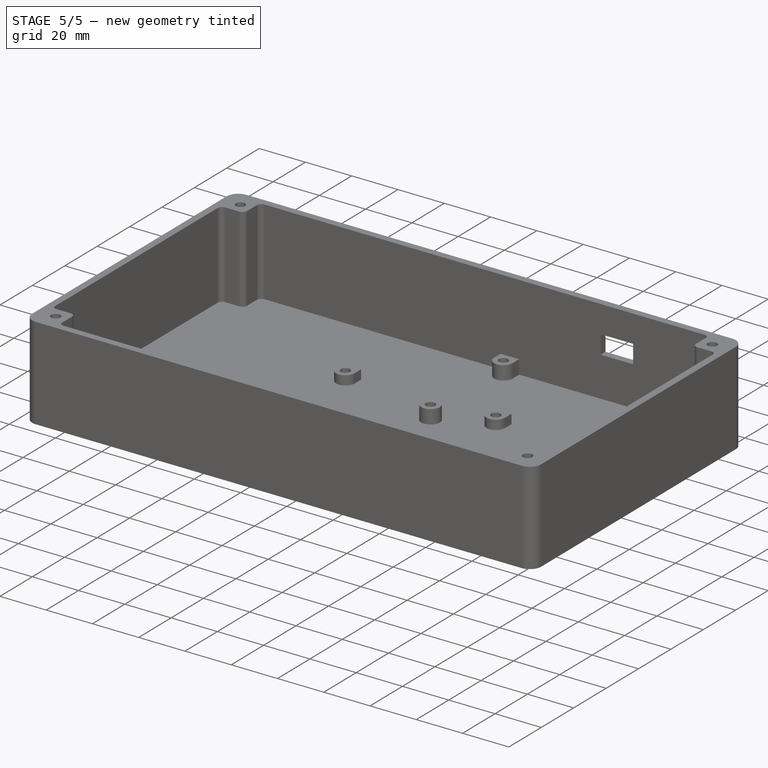
[diagram: stage 5 of 5 — iso view after this stage's code; geometry added in this stage tinted green]
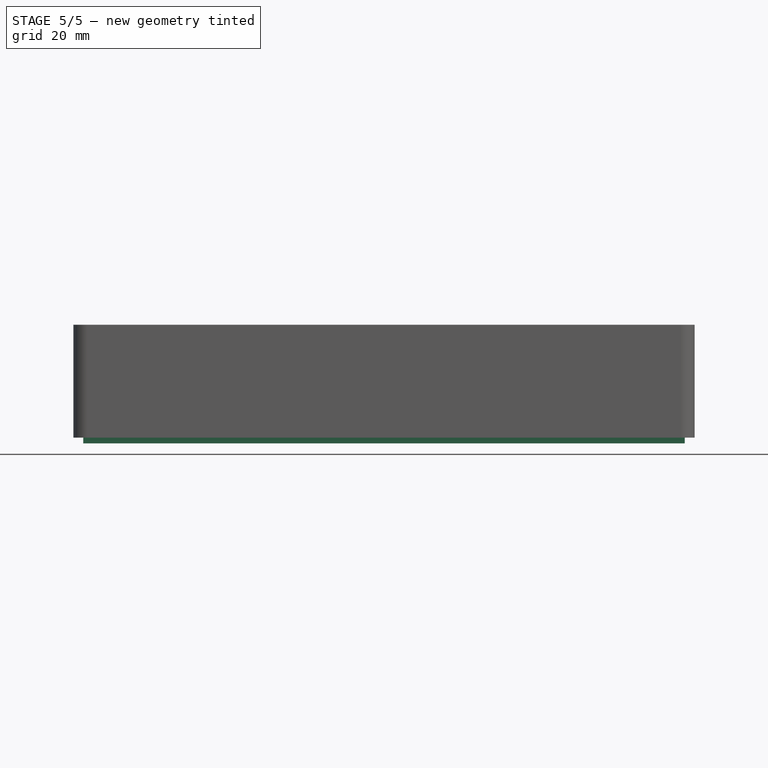
[diagram: stage 5 of 5 — front view after this stage's code; geometry added in this stage tinted green]
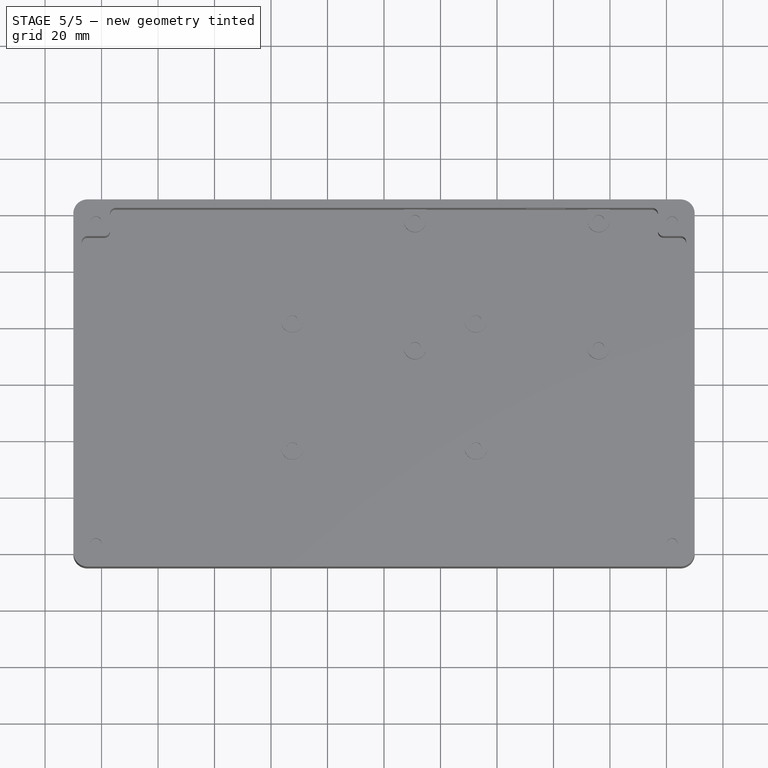
[diagram: stage 5 of 5 — top view after this stage's code; geometry added in this stage tinted green]
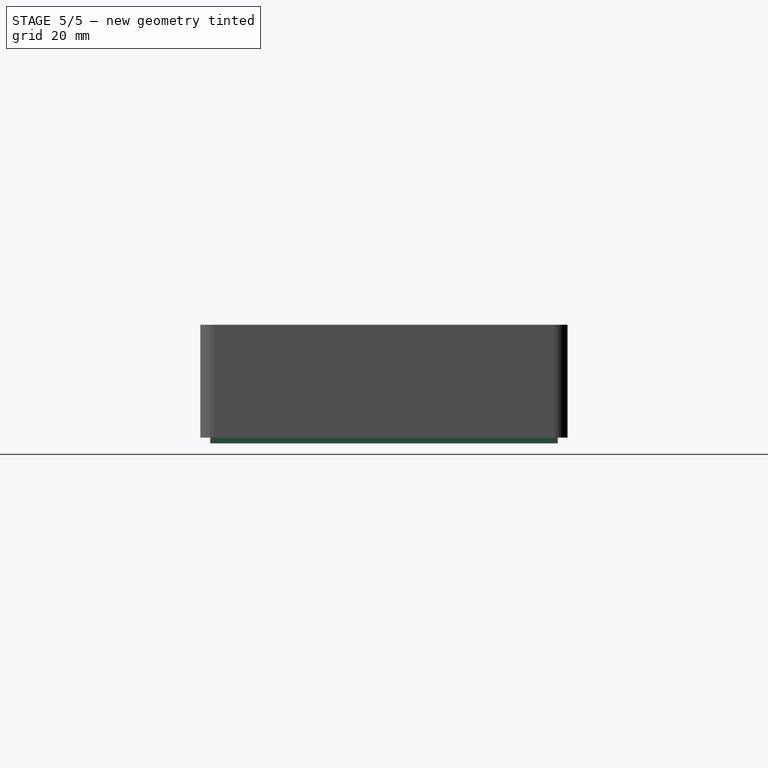
[diagram: stage 5 of 5 — right view after this stage's code; geometry added in this stage tinted green]
FEATURE [Sketcher::SketchObject] Sketch004
  ArcFitTolerance = 1e-06
  AttachmentSupport = -> [Pocket002]
  ExternalGeometry = -> [Pocket002]
  FullyConstrained = true
  MakeInternals = false
  MapMode = 5
  Placement = pos=(0,0,2) rot=(1,0,0;3.14159rad)
  sketch-geometry (8):
    g0: LineSegment StartX=-90 StartY=12 StartZ=0 EndX=-90 EndY=-2 EndZ=0
    g1: LineSegment StartX=-90 StartY=-2 StartZ=0 EndX=-76 EndY=-2 EndZ=0
    g2: LineSegment StartX=-76 StartY=-2 StartZ=0 EndX=-76 EndY=12 EndZ=0
    g3: LineSegment StartX=-76 StartY=12 StartZ=0 EndX=-90 EndY=12 EndZ=0
    g4: LineSegment StartX=-90 StartY=18 StartZ=0 EndX=-90 EndY=32 EndZ=0
    g5: LineSegment StartX=-90 StartY=32 StartZ=0 EndX=-76 EndY=32 EndZ=0
    g6: LineSegment StartX=-76 StartY=32 StartZ=0 EndX=-76 EndY=18 EndZ=0
    g7: LineSegment StartX=-76 StartY=18 StartZ=0 EndX=-90 EndY=18 EndZ=0
  constraints (24):
    c: Coincident(g0,g1)
    c: Coincident(g1,g2)
    c: Coincident(g2,g3)
    c: Coincident(g3,g0)
    c: Vertical(g0)
    c: Vertical(g2)
    c: Horizontal(g1)
    c: Horizontal(g3)
    c: Equal(g0,g3)
    c: Coincident(g4,g5)
    c: Coincident(g5,g6)
    c: Coincident(g6,g7)
    c: Coincident(g7,g4)
    c: Vertical(g4)
    c: Vertical(g6)
    c: Horizontal(g5)
    c: Horizontal(g7)
    c: Distance(g4,g6) = 14
    c: Equal(g4,g7)
    c: Equal(g3,g7)
    c: DistanceX(g4,g0) = 0
    c: DistanceY(g0,g4) = 20
    c: DistanceX(g5,g-3) = 1
    c: DistanceY(g5,g-3) = 1
FEATURE [PartDesign::Pocket] Pocket003
  BaseFeature = -> Pocket002
  Direction = (0,0,1)
  Length = 1
  Length2 = 5
  Profile = -> Sketch004
  ReferenceAxis = -> Sketch004 [N_Axis]
  Refine = true
  Suppressed = false
  Type = 0
FEATURE [Sketcher::SketchObject] Sketch005
  ArcFitTolerance = 1e-06
  AttachmentSupport = -> [Pocket003]
  ExternalGeometry = -> [Pocket003]
  FullyConstrained = true
  MakeInternals = false
  MapMode = 5
  Placement = pos=(0,0,3) rot=(0,0,1;0rad)
  sketch-geometry (8):
    g0: LineSegment StartX=-95.5 StartY=39.5 StartZ=0 EndX=-95.5 EndY=20.5 EndZ=0
    g1: LineSegment StartX=-95.5 StartY=20.5 StartZ=0 EndX=-70.5 EndY=20.5 EndZ=0
    g2: LineSegment StartX=-70.5 StartY=20.5 StartZ=0 EndX=-70.5 EndY=39.5 EndZ=0
    g3: LineSegment StartX=-70.5 StartY=39.5 StartZ=0 EndX=-95.5 EndY=39.5 EndZ=0
    g4: LineSegment [constr] StartX=-70.5 StartY=20.5 StartZ=0 EndX=-76 EndY=2 EndZ=0
    g5: LineSegment [constr] StartX=-90 StartY=2 StartZ=0 EndX=-95.5 EndY=20.5 EndZ=0
    g6: LineSegment [constr] StartX=-55 StartY=38 StartZ=0 EndX=-70.5 EndY=39.5 EndZ=0
    g7: LineSegment [constr] StartX=-70.5 StartY=20.5 StartZ=0 EndX=-55 EndY=22 EndZ=0
  constraints (20):
    c: Coincident(g0,g1)
    c: Coincident(g1,g2)
    c: Coincident(g2,g3)
    c: Coincident(g3,g0)
    c: Vertical(g0)
    c: Vertical(g2)
    c: Horizontal(g1)
    c: Horizontal(g3)
    c: Distance(g0,g2) = 25
    c: Distance(g1,g3) = 19
    c: Coincident(g4,g1)
    c: Coincident(g4,g-3)
    c: Coincident(g5,g-3)
    c: Coincident(g5,g0)
    c: Equal(g4,g5)
    c: Coincident(g6,g-5)
    c: Coincident(g6,g2)
    c: Coincident(g7,g1)
    c: Coincident(g7,g-4)
    c: Equal(g6,g7)
FEATURE [PartDesign::Pocket] Pocket004
  BaseFeature = -> Pocket003
  Direction = (0,0,-1)
  Length = 3
  Length2 = 5
  Profile = -> Sketch005
  ReferenceAxis = -> Sketch005 [N_Axis]
  Refine = true
  Suppressed = false
  Type = 0
FEATURE [PartDesign::Fillet] Fillet
  Base = -> Pocket004 [Edge1,Edge2,Edge8,Edge5]
  BaseFeature = -> Pocket004
  Radius = 5
  Refine = true
  SupportTransform = false
  Suppressed = false
  UseAllEdges = false
FEATURE [Sketcher::SketchObject] Sketch009
  ArcFitTolerance = 1e-06
  AttachmentSupport = -> [Fillet]
  FullyConstrained = true
  MakeInternals = false
  MapMode = 5
  Placement = pos=(0,0,3) rot=(0,0,1;0rad)
  sketch-geometry (8):
    g0: Circle CenterX=-102 CenterY=57 CenterZ=0 NormalX=0 NormalY=0 NormalZ=1 AngleXU=0 Radius=1.5
    g1: Circle CenterX=102 CenterY=57 CenterZ=0 NormalX=0 NormalY=0 NormalZ=1 AngleXU=0 Radius=1.5
    g2: Circle CenterX=102 CenterY=-57 CenterZ=0 NormalX=0 NormalY=0 NormalZ=1 AngleXU=0 Radius=1.5
    g3: Circle CenterX=-102 CenterY=-57 CenterZ=0 NormalX=0 NormalY=0 NormalZ=1 AngleXU=0 Radius=1.5
    g4: LineSegment [constr] StartX=-102 StartY=57 StartZ=0 EndX=0 EndY=0 EndZ=0
    g5: LineSegment [constr] StartX=0 StartY=0 StartZ=0 EndX=102 EndY=-57 EndZ=0
    g6: LineSegment [constr] StartX=0 StartY=0 StartZ=0 EndX=102 EndY=57 EndZ=0
    g7: LineSegment [constr] StartX=0 StartY=0 StartZ=0 EndX=-102 EndY=-57 EndZ=0
  constraints (20):
    c: Coincident(g4,g0)
    c: Coincident(g4,g-1)
    c: Coincident(g5,g4)
    c: Coincident(g5,g2)
    c: Coincident(g6,g4)
    c: Coincident(g6,g1)
    c: Coincident(g7,g4)
    c: Coincident(g7,g3)
    c: Equal(g4,g5)
    c: Equal(g6,g7)
    c: Equal(g4,g6)
    c: Parallel(g6,g7)
    c: Parallel(g4,g5)
    c: DistanceY(g3,g0) = 114
    c: DistanceY(g4,g0) = 57
    c: DistanceX(g0,g4) = 102
    c: Diameter(g0) = 3
    c: Equal(g0,g1)
    c: Equal(g2,g3)
    c: Equal(g3,g0)
FEATURE [PartDesign::Pocket] Pocket007
  BaseFeature = -> Fillet
  Direction = (0,0,-1)
  Length = 3
  Length2 = 5
  Profile = -> Sketch009
  ReferenceAxis = -> Sketch009 [N_Axis]
  Refine = true
  Suppressed = false
  Type = 0
FEATURE [Sketcher::SketchObject] Sketch010
  ArcFitTolerance = 1e-06
  AttachmentSupport = -> [Pocket007]
  ExternalGeometry = -> [Pocket007]
  FullyConstrained = true
  MakeInternals = false
  MapMode = 5
  Placement = pos=(0,0,0) rot=(1,0,0;3.14159rad)
  sketch-geometry (26):
    g0: LineSegment StartX=106.5 StartY=31 StartZ=0 EndX=-62 EndY=31 EndZ=0
    g1: LineSegment StartX=-62 StartY=29 StartZ=0 EndX=106.5 EndY=29 EndZ=0
    g2: LineSegment StartX=106.5 StartY=1 StartZ=0 EndX=-62 EndY=1 EndZ=0
    g3: LineSegment StartX=-62 StartY=-1 StartZ=0 EndX=106.5 EndY=-1 EndZ=0
    g4: LineSegment StartX=106.5 StartY=-1 StartZ=0 EndX=106.5 EndY=1 EndZ=0
    g5: LineSegment StartX=106.5 StartY=29 StartZ=0 EndX=106.5 EndY=31 EndZ=0
    g6: LineSegment StartX=106.5 StartY=-29 StartZ=0 EndX=106.5 EndY=-31 EndZ=0
    g7: LineSegment StartX=106.5 StartY=-31 StartZ=0 EndX=-62 EndY=-31 EndZ=0
    g8: LineSegment StartX=-62 StartY=-29 StartZ=0 EndX=106.5 EndY=-29 EndZ=0
    g9: LineSegment [constr] StartX=106.5 StartY=29 StartZ=0 EndX=106.5 EndY=1 EndZ=0
    g10: LineSegment [constr] StartX=106.5 StartY=-1 StartZ=0 EndX=106.5 EndY=-29 EndZ=0
    g11: LineSegment StartX=-62 StartY=-29 StartZ=0 EndX=-62 EndY=-1 EndZ=0
    g12: LineSegment StartX=-62 StartY=1 StartZ=0 EndX=-62 EndY=29 EndZ=0
    g13: LineSegment StartX=-62 StartY=31 StartZ=0 EndX=-62 EndY=61.5 EndZ=0
    g14: LineSegment StartX=-62 StartY=61.5 StartZ=0 EndX=-64.5 EndY=61.5 EndZ=0
    g15: LineSegment StartX=-64.5 StartY=-61.5 StartZ=0 EndX=-62 EndY=-61.5 EndZ=0
    g16: LineSegment StartX=-62 StartY=-31 StartZ=0 EndX=-62 EndY=-61.5 EndZ=0
    g17: LineSegment StartX=-64.5 StartY=-61.5 StartZ=0 EndX=-64.5 EndY=-13 EndZ=0
    g18: LineSegment StartX=-64.5 StartY=-13 StartZ=0 EndX=-106.5 EndY=-13 EndZ=0
    g19: LineSegment StartX=-106.5 StartY=-13 StartZ=0 EndX=-106.5 EndY=-10.5 EndZ=0
    g20: LineSegment StartX=-106.5 StartY=-10.5 StartZ=0 EndX=-64.5 EndY=-10.5 EndZ=0
    g21: LineSegment StartX=-64.5 StartY=-10.5 StartZ=0 EndX=-64.5 EndY=40.5 EndZ=0
    g22: LineSegment StartX=-64.5 StartY=40.5 StartZ=0 EndX=-106.5 EndY=40.5 EndZ=0
    g23: LineSegment StartX=-106.5 StartY=40.5 StartZ=0 EndX=-106.5 EndY=43 EndZ=0
    g24: LineSegment StartX=-106.5 StartY=43 StartZ=0 EndX=-64.5 EndY=43 EndZ=0
    g25: LineSegment StartX=-64.5 StartY=43 StartZ=0 EndX=-64.5 EndY=61.5 EndZ=0
  constraints (77):
    c: Horizontal(g0)
    c: Horizontal(g1)
    c: Horizontal(g2)
    c: Horizontal(g3)
    c: Coincident(g4,g3)
    c: Coincident(g4,g2)
    c: Vertical(g4)
    c: Coincident(g5,g1)
    c: Coincident(g5,g0)
    c: Coincident(g7,g6)
    c: Horizontal(g7)
    c: Coincident(g8,g6)
    c: Horizontal(g8)
    c: Equal(g5,g4)
    c: Equal(g4,g6)
    c: Vertical(g5)
    c: Vertical(g6)
    c: Coincident(g9,g1)
    c: Coincident(g9,g2)
    c: Vertical(g9)
    c: Coincident(g10,g3)
    c: Coincident(g10,g6)
    c: Vertical(g10)
    c: DistanceY(g5,g5) = 2
    c: DistanceX(g0,g-3) = 3.5
    c: Coincident(g11,g8)
    c: Coincident(g11,g3)
    c: Vertical(g11)
    c: Coincident(g12,g2)
    c: Coincident(g12,g1)
    c: Vertical(g12)
    c: Equal(g9,g10)
    c: DistanceY(g0,g-4) = 6
    c: DistanceY(g9,g9) = 28
    c: Equal(g0,g1)
    c: Equal(g2,g3)
    c: Equal(g8,g7)
    c: Coincident(g13,g0)
    c: Vertical(g13)
    c: Coincident(g14,g13)
    c: Horizontal(g14)
    c: Coincident(g16,g7)
    c: Coincident(g16,g15)
    c: Vertical(g16)
    c: DistanceX(g14,g14) = 2.5
    c: DistanceY(g14,g-5) = 3.5
    c: DistanceX(g13,g-6) = 6
    c: Horizontal(g15)
    c: Equal(g16,g13)
    c: Coincident(g17,g15)
    c: Vertical(g17)
    c: Coincident(g18,g17)
    c: Horizontal(g18)
    c: Coincident(g19,g18)
    c: Horizontal(g20)
    c: Coincident(g21,g20)
    c: Vertical(g21)
    c: Coincident(g22,g21)
    c: Horizontal(g22)
    c: Coincident(g23,g22)
    c: Coincident(g24,g23)
    c: Horizontal(g24)
    c: Coincident(g25,g24)
    c: Coincident(g25,g14)
    c: Vertical(g25)
    c: Vertical(g23)
    c: Vertical(g19)
    c: Equal(g14,g15)
    c: Equal(g19,g23)
    c: Equal(g24,g20)
    c: Coincident(g20,g19)
    c: Equal(g20,g18)
    c: DistanceX(g-7,g23) = 3.5
    c: DistanceY(g-9,g-8) = 17.5
    c: DistanceY(g23,g23) = 2.5
    c: DistanceY(g19,g-8) = 7.5
    c: DistanceY(g-10,g22) = 7.5
FEATURE [PartDesign::Pad] Pad002
  BaseFeature = -> Pocket007
  Direction = (0,0,-1)
  Length = 2
  Length2 = 10
  Profile = -> Sketch010
  ReferenceAxis = -> Sketch010 [N_Axis]
  Refine = true
  Suppressed = false
  Type = 0
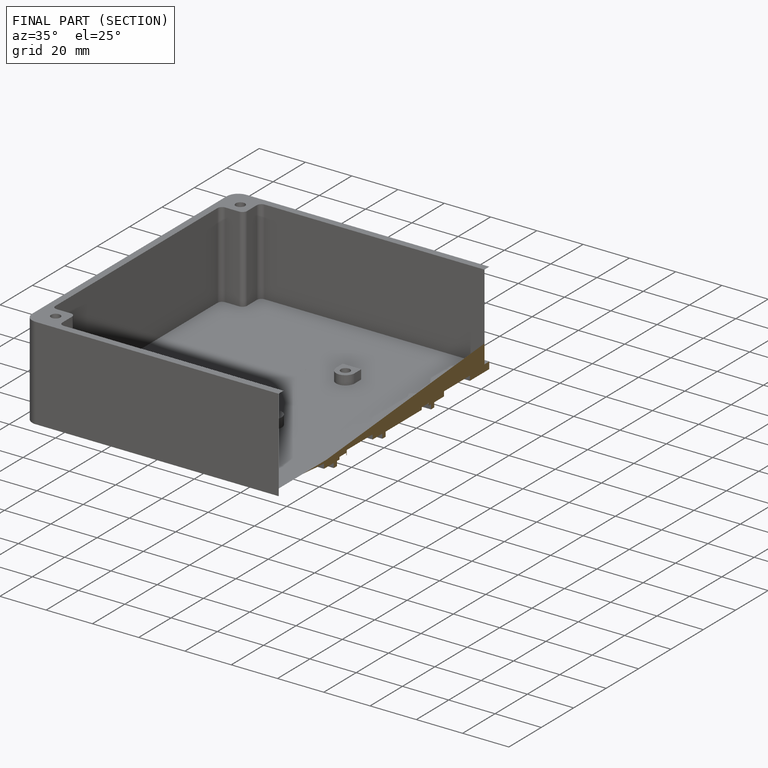
[diagram: finished part — half-section view (interior)]
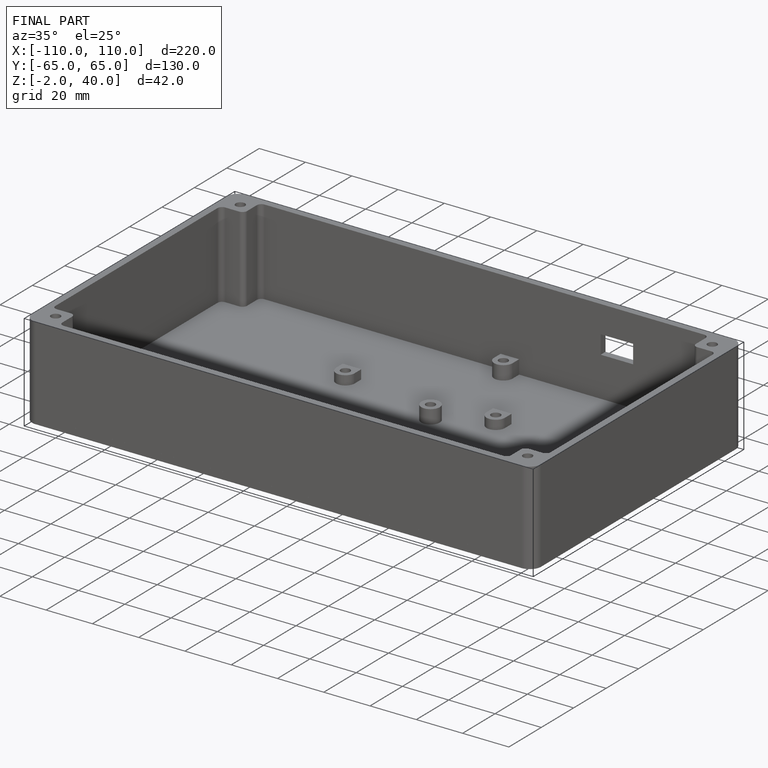
[diagram: finished part — iso view with bounding-box wireframe]
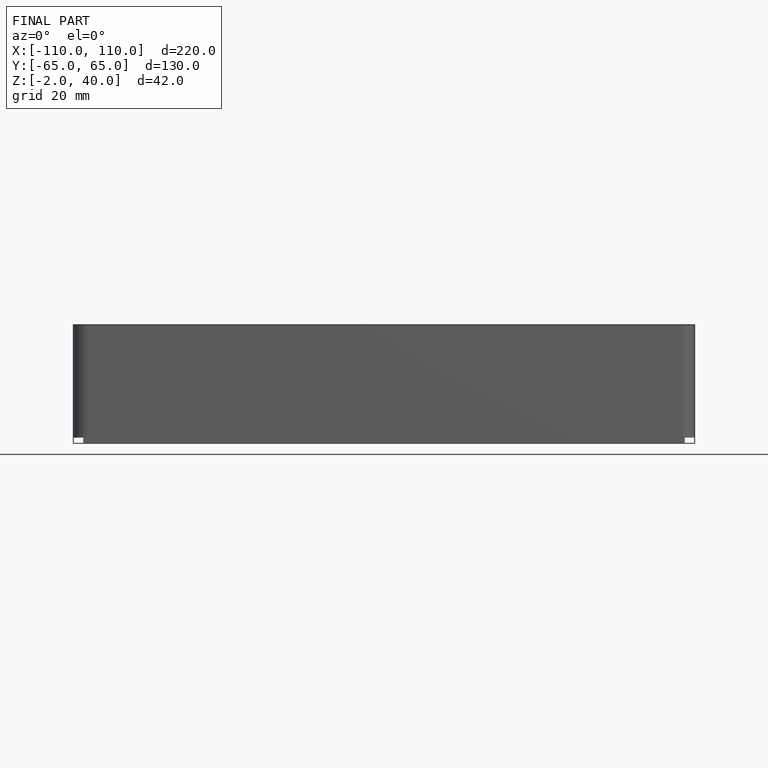
[diagram: finished part — front view with bounding-box wireframe]
